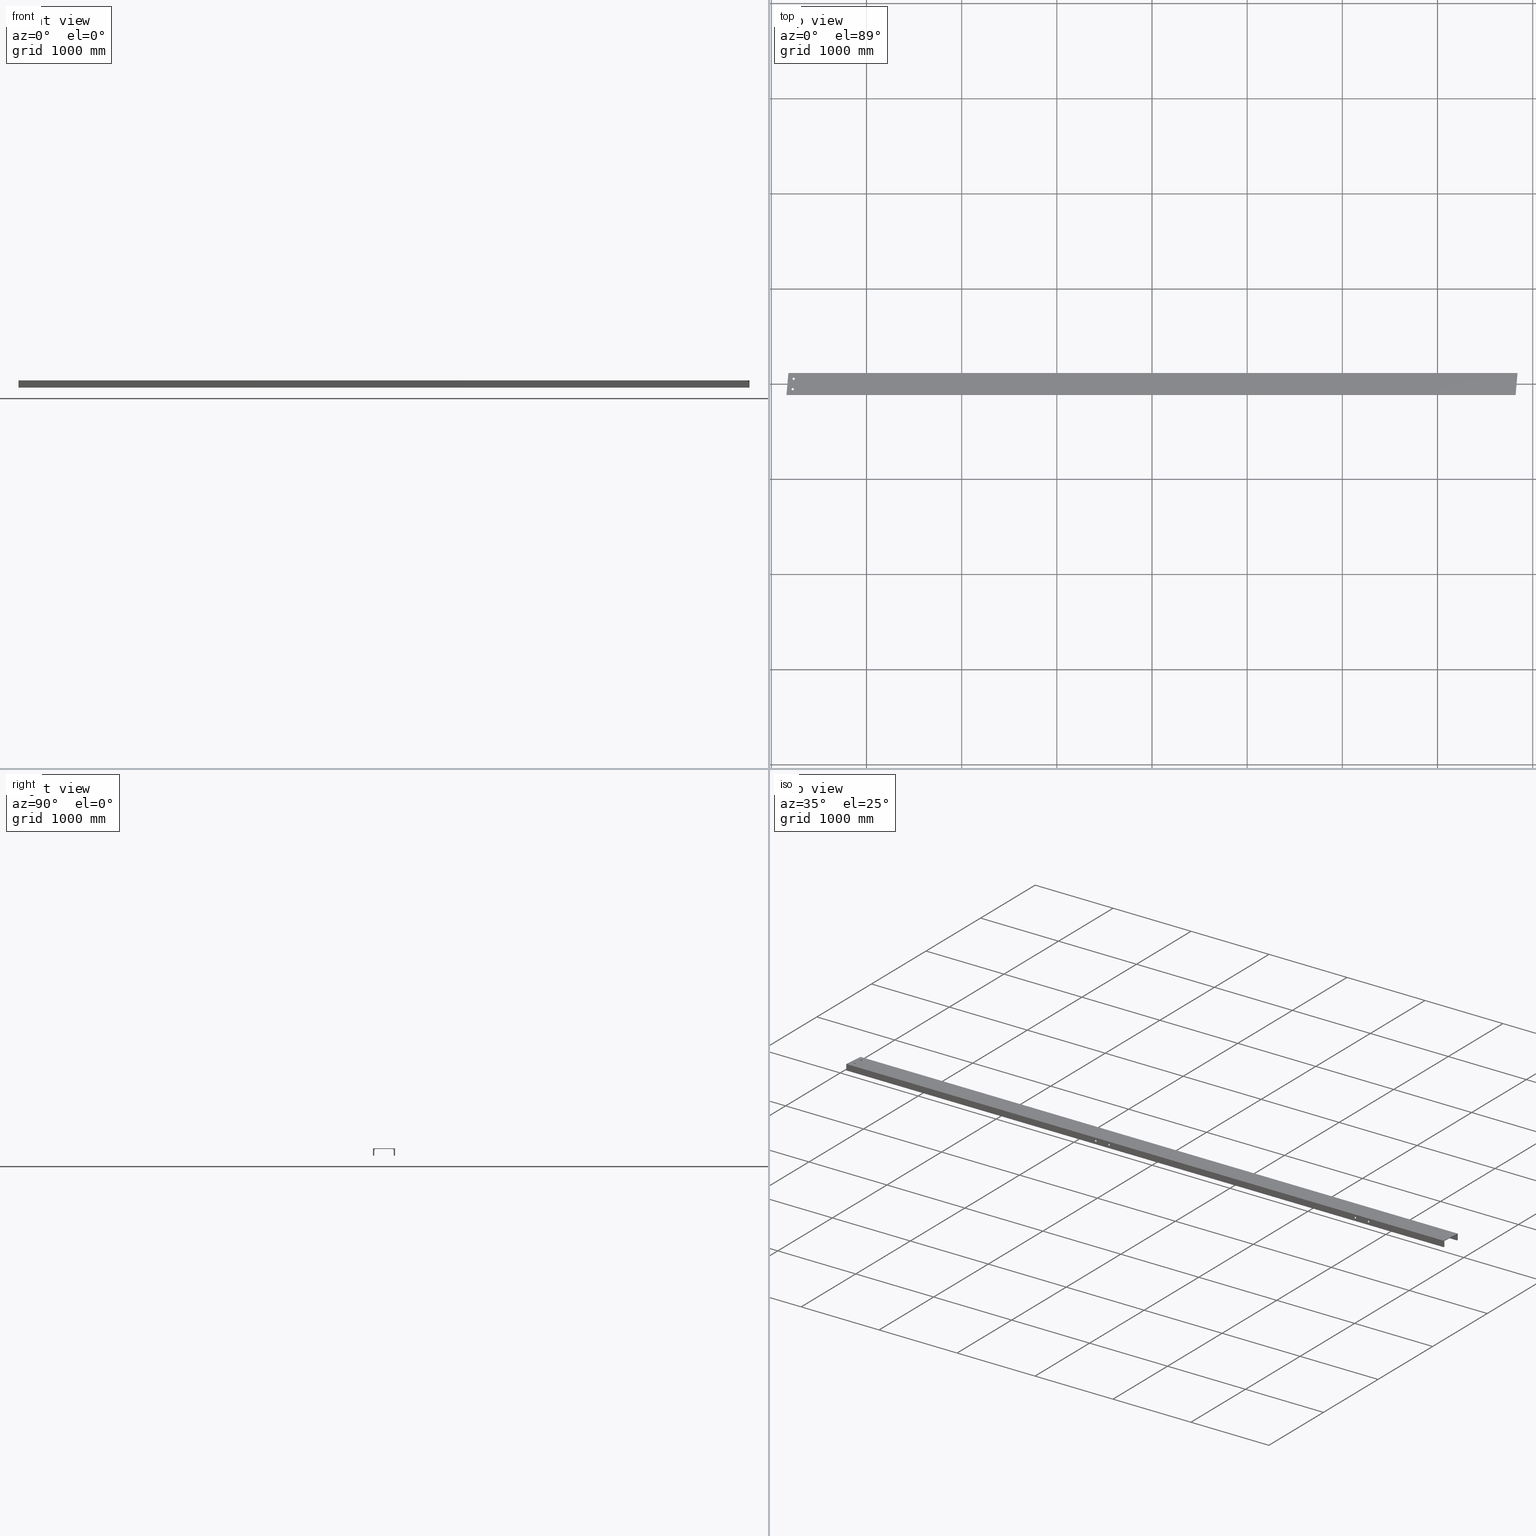
[diagram: canonical four-view strip — front | top / right | iso, engineering-drawing reading convention]
A machine part, canonical four-view strip (front | top / right | iso — engineering-drawing reading convention). The complete STEP part file that produces these views, byte-faithful:
ISO-10303-21;
HEADER;
FILE_DESCRIPTION (( 'STEP AP203' ),
    '1' );
FILE_NAME ('3982-40-10_REV_.step',
    '2026-01-19T05:53:04',
    ( '' ),
    ( '' ),
    'SwSTEP 2.0',
    'SolidWorks 2025',
    '' );
FILE_SCHEMA (( 'CONFIG_CONTROL_DESIGN' ));
ENDSEC;

DATA;
#1 = VECTOR ( 'NONE', #602, 1000.000000000000000 ) ;
#2 = CC_DESIGN_APPROVAL ( #783, ( #697 ) ) ;
#3 = DIRECTION ( 'NONE',  ( 0.000000000000000000, 1.000000000000000000, 0.000000000000000000 ) ) ;
#4 = COORDINATED_UNIVERSAL_TIME_OFFSET ( 10, 0, .AHEAD. ) ;
#5 = CARTESIAN_POINT ( 'NONE',  ( 2686.000000000000000, -114.9999999999991900, -23.79999999999891003 ) ) ;
#6 = ORIENTED_EDGE ( 'NONE', *, *, #145, .T. ) ;
#7 = ORIENTED_EDGE ( 'NONE', *, *, #297, .T. ) ;
#8 = CARTESIAN_POINT ( 'NONE',  ( 3821.927471351350050, -102.9999999999992326, -61.30000000000121219 ) ) ;
#9 = ORIENTED_EDGE ( 'NONE', *, *, #676, .F. ) ;
#10 = DIRECTION ( 'NONE',  ( -0.000000000000000000, -1.000000000000000000, -0.000000000000000000 ) ) ;
#11 = VERTEX_POINT ( 'NONE', #220 ) ;
#12 = VECTOR ( 'NONE', #561, 1000.000000000000000 ) ;
#13 = FACE_BOUND ( 'NONE', #642, .T. ) ;
#14 = VECTOR ( 'NONE', #850, 1000.000000000000114 ) ;
#15 = EDGE_LOOP ( 'NONE', ( #634, #563, #869, #238 ) ) ;
#16 = CYLINDRICAL_SURFACE ( 'NONE', #815, 12.00000000000001066 ) ;
#17 = DIRECTION ( 'NONE',  ( 1.000000000000000000, 3.061616997868382648E-16, -0.000000000000000000 ) ) ;
#18 = PLANE ( 'NONE',  #387 ) ;
#19 = ORIENTED_EDGE ( 'NONE', *, *, #380, .T. ) ;
#20 = EDGE_CURVE ( 'NONE', #148, #186, #645, .T. ) ;
#21 = CARTESIAN_POINT ( 'NONE',  ( -474.0000000000000568, -115.0000000000001563, -23.79999999998324256 ) ) ;
#22 = CARTESIAN_POINT ( 'NONE',  ( -3820.877607389039440, 114.9999999999992326, 13.70000000000000639 ) ) ;
#23 = DIRECTION ( 'NONE',  ( 0.000000000000000000, -1.000000000000000000, 9.251858538543016398E-15 ) ) ;
#24 = ORIENTED_EDGE ( 'NONE', *, *, #653, .F. ) ;
#25 = CARTESIAN_POINT ( 'NONE',  ( 3822.977335313661570, -91.00000000000085265, 7.200000000000907896 ) ) ;
#26 = CARTESIAN_POINT ( 'NONE',  ( -3753.916047590798371, 54.79070839504525026, 7.199999999999372235 ) ) ;
#27 = VECTOR ( 'NONE', #241, 1000.000000000000000 ) ;
#28 = VERTEX_POINT ( 'NONE', #496 ) ;
#29 = VECTOR ( 'NONE', #501, 1000.000000000000000 ) ;
#30 = VECTOR ( 'NONE', #140, 1000.000000000000000 ) ;
#31 = DIRECTION ( 'NONE',  ( -0.000000000000000000, -0.000000000000000000, 1.000000000000000000 ) ) ;
#32 = LINE ( 'NONE', #306, #12 ) ;
#33 = EDGE_CURVE ( 'NONE', #559, #229, #549, .T. ) ;
#34 = DIRECTION ( 'NONE',  ( -0.000000000000000000, -1.000000000000000000, -0.000000000000000000 ) ) ;
#35 = ORIENTED_EDGE ( 'NONE', *, *, #756, .F. ) ;
#36 = CARTESIAN_POINT ( 'NONE',  ( -644.0000000000001137, -103.0000000000002416, -23.80000000001432170 ) ) ;
#37 = ORIENTED_EDGE ( 'NONE', *, *, #848, .T. ) ;
#38 = CARTESIAN_POINT ( 'NONE',  ( -3822.977335313661570, 90.99999999999917577, 7.199999999998990319 ) ) ;
#39 = ADVANCED_FACE ( 'NONE', ( #711 ), #627, .F. ) ;
#40 = DIRECTION ( 'NONE',  ( -3.061616997868382648E-16, 1.000000000000000000, -1.056185620771718791E-14 ) ) ;
#41 = ORIENTED_EDGE ( 'NONE', *, *, #653, .T. ) ;
#42 = PLANE ( 'NONE',  #468 ) ;
#43 = DIRECTION ( 'NONE',  ( 3.226030545363018082E-30, -1.053701539940856832E-14, -1.000000000000000000 ) ) ;
#44 = DIRECTION ( 'NONE',  ( 0.000000000000000000, 0.000000000000000000, -1.000000000000000000 ) ) ;
#45 = ORIENTED_EDGE ( 'NONE', *, *, #676, .T. ) ;
#46 = AXIS2_PLACEMENT_3D ( 'NONE', #132, #410, #683 ) ;
#47 = CIRCLE ( 'NONE', #153, 12.00000000000001421 ) ;
#48 = DIRECTION ( 'NONE',  ( 3.226030545363018082E-30, -1.053701539940856832E-14, -1.000000000000000000 ) ) ;
#49 = ORIENTED_EDGE ( 'NONE', *, *, #288, .T. ) ;
#50 = EDGE_CURVE ( 'NONE', #600, #607, #302, .T. ) ;
#51 = CYLINDRICAL_SURFACE ( 'NONE', #590, 12.00000000000000711 ) ;
#52 = CARTESIAN_POINT ( 'NONE',  ( 2686.000000000000000, -114.9999999999991900, -35.79999999999891713 ) ) ;
#53 = ORIENTED_EDGE ( 'NONE', *, *, #746, .T. ) ;
#54 = DATE_AND_TIME ( #677, #573 ) ;
#55 = LINE ( 'NONE', #730, #208 ) ;
#56 = LINE ( 'NONE', #657, #27 ) ;
#57 = ORIENTED_EDGE ( 'NONE', *, *, #682, .F. ) ;
#58 = VECTOR ( 'NONE', #503, 1000.000000000000000 ) ;
#59 = APPROVAL_ROLE ( '' ) ;
#60 = AXIS2_PLACEMENT_3D ( 'NONE', #142, #480, #221 ) ;
#61 = VECTOR ( 'NONE', #310, 1000.000000000000114 ) ;
#62 = ADVANCED_FACE ( 'NONE', ( #690 ), #81, .T. ) ;
#63 = DIRECTION ( 'NONE',  ( -0.000000000000000000, -0.000000000000000000, 1.000000000000000000 ) ) ;
#64 = ORIENTED_EDGE ( 'NONE', *, *, #733, .F. ) ;
#65 = COORDINATED_UNIVERSAL_TIME_OFFSET ( 10, 0, .AHEAD. ) ;
#66 = DIRECTION ( 'NONE',  ( 0.08715574274765085228, 0.9961946980917461003, 0.000000000000000000 ) ) ;
#67 = EDGE_LOOP ( 'NONE', ( #521, #194, #764, #489 ) ) ;
#68 = CC_DESIGN_DATE_AND_TIME_ASSIGNMENT ( #347, #876, ( #697 ) ) ;
#69 = PLANE ( 'NONE',  #827 ) ;
#70 = AXIS2_PLACEMENT_3D ( 'NONE', #90, #102, #95 ) ;
#71 = VECTOR ( 'NONE', #782, 1000.000000000000227 ) ;
#72 = EDGE_CURVE ( 'NONE', #491, #414, #699, .T. ) ;
#73 = DIRECTION ( 'NONE',  ( 1.000000000000000000, 3.061616997868382648E-16, -0.000000000000000000 ) ) ;
#74 = ORIENTED_EDGE ( 'NONE', *, *, #539, .F. ) ;
#75 = LINE ( 'NONE', #524, #450 ) ;
#76 = EDGE_LOOP ( 'NONE', ( #264, #377 ) ) ;
#77 = VERTEX_POINT ( 'NONE', #22 ) ;
#78 = CARTESIAN_POINT ( 'NONE',  ( -3841.000000000000000, -115.0000000000008100, 13.70000000000121609 ) ) ;
#79 = ORIENTED_EDGE ( 'NONE', *, *, #589, .F. ) ;
#80 = FACE_OUTER_BOUND ( 'NONE', #431, .T. ) ;
#81 = PLANE ( 'NONE',  #588 ) ;
#82 = CARTESIAN_POINT ( 'NONE',  ( -644.0000000000001137, -115.0000000000001990, -11.80000000001430926 ) ) ;
#83 = ADVANCED_FACE ( 'NONE', ( #780 ), #426, .F. ) ;
#84 = CIRCLE ( 'NONE', #226, 12.00000000000001066 ) ;
#85 = ORIENTED_EDGE ( 'NONE', *, *, #452, .F. ) ;
#86 = CARTESIAN_POINT ( 'NONE',  ( -3841.000000000000000, 114.9999999999984226, -61.30000000000120508 ) ) ;
#87 = DIRECTION ( 'NONE',  ( -2.832564736347702873E-30, 9.251858538543016398E-15, 1.000000000000000000 ) ) ;
#88 = ORIENTED_EDGE ( 'NONE', *, *, #509, .F. ) ;
#89 = CARTESIAN_POINT ( 'NONE',  ( 2856.000000000000000, -114.9999999999991331, -35.79999999999894555 ) ) ;
#90 = CARTESIAN_POINT ( 'NONE',  ( 2856.000000000000000, -114.9999999999991331, -23.79999999999893134 ) ) ;
#91 = DIRECTION ( 'NONE',  ( 1.000000000000000000, 0.000000000000000000, 0.000000000000000000 ) ) ;
#92 = ORIENTED_EDGE ( 'NONE', *, *, #268, .F. ) ;
#93 = EDGE_CURVE ( 'NONE', #156, #414, #291, .T. ) ;
#94 = CARTESIAN_POINT ( 'NONE',  ( -3820.877607389039440, 114.9999999999992326, 13.70000000000000639 ) ) ;
#95 = DIRECTION ( 'NONE',  ( 0.000000000000000000, 0.000000000000000000, -1.000000000000000000 ) ) ;
#96 = FACE_BOUND ( 'NONE', #370, .T. ) ;
#97 = VERTEX_POINT ( 'NONE', #487 ) ;
#98 = CIRCLE ( 'NONE', #571, 12.00000000000001066 ) ;
#99 = APPROVAL_PERSON_ORGANIZATION ( #122, #629, #883 ) ;
#100 = CARTESIAN_POINT ( 'NONE',  ( -3820.877607389039440, 114.9999999999992326, -61.30000000000121219 ) ) ;
#101 = EDGE_CURVE ( 'NONE', #343, #837, #235, .T. ) ;
#102 = DIRECTION ( 'NONE',  ( -0.000000000000000000, -1.000000000000000000, -0.000000000000000000 ) ) ;
#103 = DIRECTION ( 'NONE',  ( -0.000000000000000000, -1.000000000000000000, -0.000000000000000000 ) ) ;
#104 = ORIENTED_EDGE ( 'NONE', *, *, #72, .F. ) ;
#105 = CARTESIAN_POINT ( 'NONE',  ( -3765.916047590798371, 54.79070839504525026, 13.70000000000000639 ) ) ;
#106 = LINE ( 'NONE', #383, #500 ) ;
#107 = CARTESIAN_POINT ( 'NONE',  ( 2856.000000000000000, -102.9999999999993037, -35.79999999999894555 ) ) ;
#108 = VERTEX_POINT ( 'NONE', #843 ) ;
#109 =( LENGTH_UNIT ( ) NAMED_UNIT ( * ) SI_UNIT ( .MILLI., .METRE. ) );
#110 = LINE ( 'NONE', #168, #725 ) ;
#111 = CARTESIAN_POINT ( 'NONE',  ( -3838.916221867997137, -91.18230696385437284, 7.200000000000909672 ) ) ;
#112 = ORIENTED_EDGE ( 'NONE', *, *, #437, .F. ) ;
#113 = CIRCLE ( 'NONE', #319, 12.00000000000001066 ) ;
#114 = CC_DESIGN_APPROVAL ( #519, ( #620 ) ) ;
#115 = CARTESIAN_POINT ( 'NONE',  ( -474.0000000000000568, -115.0000000000001563, -23.79999999998324256 ) ) ;
#116 = DIRECTION ( 'NONE',  ( 0.000000000000000000, 1.040834085586083310E-14, 1.000000000000000000 ) ) ;
#117 = VERTEX_POINT ( 'NONE', #231 ) ;
#118 = LINE ( 'NONE', #439, #486 ) ;
#119 = DIRECTION ( 'NONE',  ( 0.000000000000000000, 0.000000000000000000, -1.000000000000000000 ) ) ;
#120 = CARTESIAN_POINT ( 'NONE',  ( -3841.000000000000000, 114.9999999999992326, 13.69999999999879492 ) ) ;
#121 = ORIENTED_EDGE ( 'NONE', *, *, #539, .T. ) ;
#122 = PERSON_AND_ORGANIZATION ( #304, #671 ) ;
#123 = ADVANCED_FACE ( 'NONE', ( #776 ), #160, .F. ) ;
#124 = LINE ( 'NONE', #511, #195 ) ;
#125 = EDGE_LOOP ( 'NONE', ( #121, #475, #477, #92 ) ) ;
#126 = VECTOR ( 'NONE', #846, 1000.000000000000000 ) ;
#127 = DIRECTION ( 'NONE',  ( 0.000000000000000000, 1.007060708177685505E-14, 1.000000000000000000 ) ) ;
#128 = ORIENTED_EDGE ( 'NONE', *, *, #371, .T. ) ;
#129 = DIRECTION ( 'NONE',  ( 0.000000000000000000, 0.000000000000000000, 1.000000000000000000 ) ) ;
#130 = CARTESIAN_POINT ( 'NONE',  ( -3839.950136037689390, -103.0000000000009805, -4.799999999998885158 ) ) ;
#131 = ORIENTED_EDGE ( 'NONE', *, *, #879, .T. ) ;
#132 = CARTESIAN_POINT ( 'NONE',  ( -3775.503179293039466, -54.79070839504681345, 7.200000000000525979 ) ) ;
#133 = EDGE_CURVE ( 'NONE', #491, #77, #32, .T. ) ;
#134 = APPROVAL_STATUS ( 'not_yet_approved' ) ;
#135 = AXIS2_PLACEMENT_3D ( 'NONE', #651, #874, #665 ) ;
#136 = CIRCLE ( 'NONE', #855, 12.00000000000000711 ) ;
#137 = AXIS2_PLACEMENT_3D ( 'NONE', #144, #214, #761 ) ;
#138 = CARTESIAN_POINT ( 'NONE',  ( 2856.000000000000000, -102.9999999999991758, -23.79999999999893134 ) ) ;
#139 = VERTEX_POINT ( 'NONE', #863 ) ;
#140 = DIRECTION ( 'NONE',  ( 1.000000000000000000, 3.061616997868382648E-16, -0.000000000000000000 ) ) ;
#141 = VERTEX_POINT ( 'NONE', #52 ) ;
#142 = CARTESIAN_POINT ( 'NONE',  ( 2686.000000000000000, -102.9999999999992326, -23.79999999999891003 ) ) ;
#143 = ORIENTED_EDGE ( 'NONE', *, *, #170, .F. ) ;
#144 = CARTESIAN_POINT ( 'NONE',  ( 2856.000000000000000, -114.9999999999991331, -23.79999999999893134 ) ) ;
#145 = EDGE_CURVE ( 'NONE', #166, #248, #124, .T. ) ;
#146 = ORIENTED_EDGE ( 'NONE', *, *, #345, .F. ) ;
#147 = CARTESIAN_POINT ( 'NONE',  ( -3775.503179293039466, -54.79070839504681345, 13.70000000000000639 ) ) ;
#148 = VERTEX_POINT ( 'NONE', #591 ) ;
#149 = CYLINDRICAL_SURFACE ( 'NONE', #695, 12.00000000000001066 ) ;
#150 = CARTESIAN_POINT ( 'NONE',  ( -3839.950136037688935, -103.0000000000016200, -61.29999999999893134 ) ) ;
#151 = AXIS2_PLACEMENT_3D ( 'NONE', #78, #356, #492 ) ;
#152 = DIRECTION ( 'NONE',  ( -0.000000000000000000, -0.000000000000000000, 1.000000000000000000 ) ) ;
#153 = AXIS2_PLACEMENT_3D ( 'NONE', #719, #729, #378 ) ;
#154 = EDGE_LOOP ( 'NONE', ( #379, #732, #143, #473 ) ) ;
#155 = DIRECTION ( 'NONE',  ( 1.000000000000000000, 0.000000000000000000, 0.000000000000000000 ) ) ;
#156 = VERTEX_POINT ( 'NONE', #722 ) ;
#157 = DIRECTION ( 'NONE',  ( 0.000000000000000000, 1.056185620771718791E-14, 1.000000000000000000 ) ) ;
#158 = ORIENTED_EDGE ( 'NONE', *, *, #33, .F. ) ;
#159 = LINE ( 'NONE', #372, #517 ) ;
#160 = PLANE ( 'NONE',  #449 ) ;
#161 = PLANE ( 'NONE',  #300 ) ;
#162 = ORIENTED_EDGE ( 'NONE', *, *, #317, .T. ) ;
#163 = DIRECTION ( 'NONE',  ( 9.240426839660936864E-16, 1.056185620771718791E-14, 1.000000000000000000 ) ) ;
#164 = DIRECTION ( 'NONE',  ( 0.000000000000000000, 1.000000000000000000, -1.272130549049665110E-14 ) ) ;
#165 = DIRECTION ( 'NONE',  ( -0.000000000000000000, -1.000000000000000000, -0.000000000000000000 ) ) ;
#166 = VERTEX_POINT ( 'NONE', #328 ) ;
#167 = AXIS2_PLACEMENT_3D ( 'NONE', #715, #253, #250 ) ;
#168 = CARTESIAN_POINT ( 'NONE',  ( 2686.000000000000000, -114.9999999999991900, -35.79999999999891713 ) ) ;
#169 = EDGE_LOOP ( 'NONE', ( #24, #393, #178, #831 ) ) ;
#170 = EDGE_CURVE ( 'NONE', #77, #156, #441, .T. ) ;
#171 = LINE ( 'NONE', #259, #71 ) ;
#172 = DIRECTION ( 'NONE',  ( 0.000000000000000000, 1.000000000000000000, 0.000000000000000000 ) ) ;
#173 = ORIENTED_EDGE ( 'NONE', *, *, #714, .T. ) ;
#174 = DIRECTION ( 'NONE',  ( -0.000000000000000000, -1.000000000000000000, -0.000000000000000000 ) ) ;
#175 = CYLINDRICAL_SURFACE ( 'NONE', #167, 12.00000000000001066 ) ;
#176 = EDGE_CURVE ( 'NONE', #251, #581, #463, .T. ) ;
#177 = CARTESIAN_POINT ( 'NONE',  ( -3841.000000000000000, -115.0000000000015632, -61.29999999999878213 ) ) ;
#178 = ORIENTED_EDGE ( 'NONE', *, *, #576, .T. ) ;
#179 = VECTOR ( 'NONE', #17, 1000.000000000000000 ) ;
#180 = VECTOR ( 'NONE', #680, 1000.000000000000000 ) ;
#181 = LOCAL_TIME ( 16, 53, 4.000000000000000000, #65 ) ;
#182 = DIRECTION ( 'NONE',  ( -0.000000000000000000, -0.000000000000000000, 1.000000000000000000 ) ) ;
#183 = CC_DESIGN_PERSON_AND_ORGANIZATION_ASSIGNMENT ( #341, #818, ( #788 ) ) ;
#184 = DIRECTION ( 'NONE',  ( 8.810639544792988904E-16, 1.007060708177685663E-14, 1.000000000000000000 ) ) ;
#185 = CARTESIAN_POINT ( 'NONE',  ( -644.0000000000001137, -115.0000000000001990, -23.80000000001432170 ) ) ;
#186 = VERTEX_POINT ( 'NONE', #445 ) ;
#187 = ADVANCED_FACE ( 'NONE', ( #254 ), #808, .F. ) ;
#188 = APPROVAL_DATE_TIME ( #267, #629 ) ;
#189 = EDGE_CURVE ( 'NONE', #559, #366, #260, .T. ) ;
#190 = CARTESIAN_POINT ( 'NONE',  ( -644.0000000000001137, -103.0000000000002416, -23.80000000001432170 ) ) ;
#191 = EDGE_LOOP ( 'NONE', ( #687, #841 ) ) ;
#192 = EDGE_CURVE ( 'NONE', #117, #343, #299, .T. ) ;
#193 = CARTESIAN_POINT ( 'NONE',  ( -3839.515268145853497, -98.02943725152374554, 7.200000000001046452 ) ) ;
#194 = ORIENTED_EDGE ( 'NONE', *, *, #522, .F. ) ;
#195 = VECTOR ( 'NONE', #852, 1000.000000000000000 ) ;
#196 = VECTOR ( 'NONE', #720, 1000.000000000000000 ) ;
#197 = DATE_TIME_ROLE ( 'classification_date' ) ;
#198 = VECTOR ( 'NONE', #165, 1000.000000000000000 ) ;
#199 = AXIS2_PLACEMENT_3D ( 'NONE', #787, #395, #861 ) ;
#200 = FACE_OUTER_BOUND ( 'NONE', #630, .T. ) ;
#201 = DATE_AND_TIME ( #470, #376 ) ;
#202 = EDGE_CURVE ( 'NONE', #465, #837, #282, .T. ) ;
#203 = FACE_OUTER_BOUND ( 'NONE', #169, .T. ) ;
#204 = CALENDAR_DATE ( 2026, 19, 1 ) ;
#205 = DIRECTION ( 'NONE',  ( 0.000000000000000000, 1.040834085586083310E-14, 1.000000000000000000 ) ) ;
#206 = ORIENTED_EDGE ( 'NONE', *, *, #547, .T. ) ;
#207 = VECTOR ( 'NONE', #298, 1000.000000000000000 ) ;
#208 = VECTOR ( 'NONE', #184, 1000.000000000000000 ) ;
#209 = ORIENTED_EDGE ( 'NONE', *, *, #458, .F. ) ;
#210 = CC_DESIGN_APPROVAL ( #629, ( #788 ) ) ;
#211 = DIRECTION ( 'NONE',  ( -3.061616997868382648E-16, 1.000000000000000000, -1.056185620771718791E-14 ) ) ;
#212 = ORIENTED_EDGE ( 'NONE', *, *, #93, .T. ) ;
#213 = EDGE_CURVE ( 'NONE', #366, #600, #56, .T. ) ;
#214 = DIRECTION ( 'NONE',  ( -0.000000000000000000, -1.000000000000000000, -0.000000000000000000 ) ) ;
#215 = DIRECTION ( 'NONE',  ( -0.000000000000000000, -1.000000000000000000, -0.000000000000000000 ) ) ;
#216 = EDGE_CURVE ( 'NONE', #139, #597, #635, .T. ) ;
#217 = CARTESIAN_POINT ( 'NONE',  ( -3763.503179293039466, -54.79070839504681345, 13.70000000000000639 ) ) ;
#218 = EDGE_LOOP ( 'NONE', ( #296, #759, #798, #45, #79, #418, #812, #766, #823, #717 ) ) ;
#219 = DIRECTION ( 'NONE',  ( 0.000000000000000000, 1.000000000000000000, -1.055290114552557281E-14 ) ) ;
#220 = CARTESIAN_POINT ( 'NONE',  ( 2856.000000000000000, -114.9999999999991331, -35.79999999999894555 ) ) ;
#221 = DIRECTION ( 'NONE',  ( 0.000000000000000000, 1.040834085586083310E-14, 1.000000000000000000 ) ) ;
#222 = VERTEX_POINT ( 'NONE', #107 ) ;
#223 = DIRECTION ( 'NONE',  ( -0.000000000000000000, -0.000000000000000000, 1.000000000000000000 ) ) ;
#224 = UNCERTAINTY_MEASURE_WITH_UNIT (LENGTH_MEASURE( 1.000000000000000082E-05 ), #109, 'distance_accuracy_value', 'NONE');
#225 = DIRECTION ( 'NONE',  ( -9.240426839660826424E-16, -1.056185620771718791E-14, -1.000000000000000000 ) ) ;
#226 = AXIS2_PLACEMENT_3D ( 'NONE', #147, #152, #91 ) ;
#227 = DIRECTION ( 'NONE',  ( 1.000000000000000000, 3.061616997868382648E-16, -0.000000000000000000 ) ) ;
#228 = AXIS2_PLACEMENT_3D ( 'NONE', #283, #354, #219 ) ;
#229 = VERTEX_POINT ( 'NONE', #456 ) ;
#230 = EDGE_CURVE ( 'NONE', #166, #321, #320, .T. ) ;
#231 = CARTESIAN_POINT ( 'NONE',  ( -644.0000000000001137, -103.0000000000001137, -11.80000000001430926 ) ) ;
#232 = DIRECTION ( 'NONE',  ( 3.223581824952207075E-30, -1.052901727158096773E-14, -1.000000000000000000 ) ) ;
#233 = ORIENTED_EDGE ( 'NONE', *, *, #678, .F. ) ;
#234 = CARTESIAN_POINT ( 'NONE',  ( 2686.000000000000000, -114.9999999999991900, -23.79999999999891003 ) ) ;
#235 = LINE ( 'NONE', #368, #207 ) ;
#236 = FACE_BOUND ( 'NONE', #784, .T. ) ;
#237 = ADVANCED_FACE ( 'NONE', ( #515 ), #804, .F. ) ;
#238 = ORIENTED_EDGE ( 'NONE', *, *, #33, .T. ) ;
#239 = CARTESIAN_POINT ( 'NONE',  ( 3821.927471351350505, -102.9999999999992752, -61.30000000000600835 ) ) ;
#240 = DIRECTION ( 'NONE',  ( 0.000000000000000000, 1.040834085586083310E-14, 1.000000000000000000 ) ) ;
#241 = DIRECTION ( 'NONE',  ( 1.000000000000000000, 3.061616997868382648E-16, -0.000000000000000000 ) ) ;
#242 = ORIENTED_EDGE ( 'NONE', *, *, #522, .T. ) ;
#243 = VECTOR ( 'NONE', #514, 1000.000000000000000 ) ;
#244 = ADVANCED_FACE ( 'NONE', ( #520 ), #507, .F. ) ;
#245 = DIRECTION ( 'NONE',  ( -3.061616997868382648E-16, 1.000000000000000000, -1.056185620771718791E-14 ) ) ;
#246 = CARTESIAN_POINT ( 'NONE',  ( -474.0000000000000568, -103.0000000000001847, -23.79999999998324256 ) ) ;
#247 = DIRECTION ( 'NONE',  ( 0.000000000000000000, 0.000000000000000000, -1.000000000000000000 ) ) ;
#248 = VERTEX_POINT ( 'NONE', #177 ) ;
#249 =( NAMED_UNIT ( * ) SI_UNIT ( $, .STERADIAN. ) SOLID_ANGLE_UNIT ( ) );
#250 = DIRECTION ( 'NONE',  ( 1.000000000000000000, 0.000000000000000000, 0.000000000000000000 ) ) ;
#251 = VERTEX_POINT ( 'NONE', #451 ) ;
#252 = FACE_OUTER_BOUND ( 'NONE', #685, .T. ) ;
#253 = DIRECTION ( 'NONE',  ( -0.000000000000000000, -0.000000000000000000, 1.000000000000000000 ) ) ;
#254 = FACE_OUTER_BOUND ( 'NONE', #125, .T. ) ;
#255 = EDGE_LOOP ( 'NONE', ( #508, #309, #768, #382 ) ) ;
#256 = AXIS2_PLACEMENT_3D ( 'NONE', #185, #859, #247 ) ;
#257 = AXIS2_PLACEMENT_3D ( 'NONE', #662, #129, #526 ) ;
#258 = PERSON_AND_ORGANIZATION ( #304, #671 ) ;
#259 = CARTESIAN_POINT ( 'NONE',  ( 3764.760817020207924, -756.4178489788904471, 7.200000000007920065 ) ) ;
#260 = LINE ( 'NONE', #111, #679 ) ;
#261 = VERTEX_POINT ( 'NONE', #334 ) ;
#262 = SECURITY_CLASSIFICATION_LEVEL ( 'unclassified' ) ;
#263 = CARTESIAN_POINT ( 'NONE',  ( -3839.950136037689390, -103.0000000000009095, 2.229437251523970431 ) ) ;
#264 = ORIENTED_EDGE ( 'NONE', *, *, #663, .F. ) ;
#265 = CARTESIAN_POINT ( 'NONE',  ( -3820.877607389039440, 114.9999999999992326, -61.30000000000121219 ) ) ;
#266 = VECTOR ( 'NONE', #497, 1000.000000000000000 ) ;
#267 = DATE_AND_TIME ( #204, #181 ) ;
#268 = EDGE_CURVE ( 'NONE', #597, #97, #727, .T. ) ;
#269 = DIRECTION ( 'NONE',  ( -0.000000000000000000, -1.000000000000000000, -0.000000000000000000 ) ) ;
#270 = ADVANCED_FACE ( 'NONE', ( #606 ), #348, .F. ) ;
#271 = APPROVAL_STATUS ( 'not_yet_approved' ) ;
#272 = ADVANCED_FACE ( 'NONE', ( #278 ), #69, .F. ) ;
#273 = CARTESIAN_POINT ( 'NONE',  ( -3763.503179293039466, -54.79070839504681345, 7.200000000000525979 ) ) ;
#274 = ORIENTED_EDGE ( 'NONE', *, *, #20, .T. ) ;
#275 = CC_DESIGN_PERSON_AND_ORGANIZATION_ASSIGNMENT ( #672, #531, ( #620 ) ) ;
#276 = CARTESIAN_POINT ( 'NONE',  ( 3839.950136037689390, 103.0000000000013927, -4.800000000001060307 ) ) ;
#277 = ORIENTED_EDGE ( 'NONE', *, *, #332, .F. ) ;
#278 = FACE_OUTER_BOUND ( 'NONE', #453, .T. ) ;
#279 = ADVANCED_FACE ( 'NONE', ( #203 ), #534, .F. ) ;
#280 = VERTEX_POINT ( 'NONE', #273 ) ;
#281 = ADVANCED_FACE ( 'NONE', ( #538 ), #826, .F. ) ;
#282 = CIRCLE ( 'NONE', #800, 12.00000000000001421 ) ;
#283 = CARTESIAN_POINT ( 'NONE',  ( -3765.916047590798371, 54.79070839504525026, 7.199999999999372235 ) ) ;
#284 = CIRCLE ( 'NONE', #786, 12.00000000000001066 ) ;
#285 = ORIENTED_EDGE ( 'NONE', *, *, #176, .F. ) ;
#286 = LOCAL_TIME ( 16, 53, 4.000000000000000000, #601 ) ;
#287 = DIRECTION ( 'NONE',  ( 3.226030545363018082E-30, -1.053701539940856832E-14, -1.000000000000000000 ) ) ;
#288 = EDGE_CURVE ( 'NONE', #670, #321, #75, .T. ) ;
#289 = ORIENTED_EDGE ( 'NONE', *, *, #718, .F. ) ;
#290 = CARTESIAN_POINT ( 'NONE',  ( -3841.000000000000000, -103.0000000000009805, -4.799999999998885158 ) ) ;
#291 = LINE ( 'NONE', #553, #126 ) ;
#292 = CARTESIAN_POINT ( 'NONE',  ( -3841.000000000000000, -115.0000000000008100, 13.70000000000121609 ) ) ;
#293 = VERTEX_POINT ( 'NONE', #8 ) ;
#294 = ORIENTED_EDGE ( 'NONE', *, *, #133, .F. ) ;
#295 = FACE_BOUND ( 'NONE', #364, .T. ) ;
#296 = ORIENTED_EDGE ( 'NONE', *, *, #813, .T. ) ;
#297 = EDGE_CURVE ( 'NONE', #222, #261, #802, .T. ) ;
#298 = DIRECTION ( 'NONE',  ( -0.000000000000000000, -1.000000000000000000, -0.000000000000000000 ) ) ;
#299 = CIRCLE ( 'NONE', #692, 12.00000000000001066 ) ;
#300 = AXIS2_PLACEMENT_3D ( 'NONE', #836, #87, #23 ) ;
#301 = FACE_BOUND ( 'NONE', #817, .T. ) ;
#302 =( BOUNDED_CURVE ( )  B_SPLINE_CURVE ( 3, ( #25, #565, #482, #419 ),
 .UNSPECIFIED., .F., .T. ) 
 B_SPLINE_CURVE_WITH_KNOTS ( ( 4, 4 ),
 ( 1.570796326795072195, 3.141592653589782902 ),
 .UNSPECIFIED. ) 
 CURVE ( )  GEOMETRIC_REPRESENTATION_ITEM ( )  RATIONAL_B_SPLINE_CURVE ( ( 1.000000000000000000, 0.8047378541244087913, 0.8047378541244087913, 1.000000000000000000 ) ) 
 REPRESENTATION_ITEM ( '' )  );
#303 = ORIENTED_EDGE ( 'NONE', *, *, #533, .F. ) ;
#304 = PERSON ( 'UNSPECIFIED', 'UNSPECIFIED', 'UNSPECIFIED', ('UNSPECIFIED'), ('UNSPECIFIED'), ('UNSPECIFIED') ) ;
#305 = DIRECTION ( 'NONE',  ( 0.000000000000000000, 1.040834085586083310E-14, 1.000000000000000000 ) ) ;
#306 = CARTESIAN_POINT ( 'NONE',  ( -3820.877607389039440, 114.9999999999992326, -61.30000000000121219 ) ) ;
#307 = EDGE_CURVE ( 'NONE', #613, #771, #113, .T. ) ;
#308 = FACE_BOUND ( 'NONE', #585, .T. ) ;
#309 = ORIENTED_EDGE ( 'NONE', *, *, #533, .T. ) ;
#310 = DIRECTION ( 'NONE',  ( -0.08715574274765190699, -0.9961946980917459893, 0.000000000000000000 ) ) ;
#311 = ORIENTED_EDGE ( 'NONE', *, *, #682, .T. ) ;
#312 = CARTESIAN_POINT ( 'NONE',  ( -474.0000000000000568, -115.0000000000001563, -11.79999999998323013 ) ) ;
#313 = DIRECTION ( 'NONE',  ( -0.08715574274765085228, -0.9961946980917461003, 1.049691887460189778E-14 ) ) ;
#314 = EDGE_CURVE ( 'NONE', #28, #141, #814, .T. ) ;
#315 = ORIENTED_EDGE ( 'NONE', *, *, #133, .T. ) ;
#316 = CARTESIAN_POINT ( 'NONE',  ( -3763.503179293039466, -54.79070839504681345, 13.70000000000000639 ) ) ;
#317 = EDGE_CURVE ( 'NONE', #148, #366, #731, .T. ) ;
#318 = CARTESIAN_POINT ( 'NONE',  ( -3821.927471351350505, 102.9999999999984794, -61.30000000000111271 ) ) ;
#319 = AXIS2_PLACEMENT_3D ( 'NONE', #352, #211, #339 ) ;
#320 = LINE ( 'NONE', #574, #751 ) ;
#321 = VERTEX_POINT ( 'NONE', #737 ) ;
#322 = EDGE_CURVE ( 'NONE', #504, #97, #136, .T. ) ;
#323 = LOCAL_TIME ( 16, 53, 4.000000000000000000, #523 ) ;
#324 = FACE_BOUND ( 'NONE', #76, .T. ) ;
#325 = LINE ( 'NONE', #290, #30 ) ;
#326 = ORIENTED_EDGE ( 'NONE', *, *, #170, .T. ) ;
#327 = DIRECTION ( 'NONE',  ( -8.810639544792883394E-16, -1.007060708177685505E-14, -1.000000000000000000 ) ) ;
#328 = CARTESIAN_POINT ( 'NONE',  ( -3841.000000000000000, -115.0000000000008100, 13.70000000000000639 ) ) ;
#329 = ORIENTED_EDGE ( 'NONE', *, *, #230, .F. ) ;
#330 = APPLICATION_CONTEXT ( 'configuration controlled 3d designs of mechanical parts and assemblies' ) ;
#331 = APPROVAL_DATE_TIME ( #54, #783 ) ;
#332 = EDGE_CURVE ( 'NONE', #248, #670, #405, .T. ) ;
#333 = LINE ( 'NONE', #318, #346 ) ;
#334 = CARTESIAN_POINT ( 'NONE',  ( 2856.000000000000000, -102.9999999999990479, -11.79999999999891891 ) ) ;
#335 = ORIENTED_EDGE ( 'NONE', *, *, #317, .F. ) ;
#336 = AXIS2_PLACEMENT_3D ( 'NONE', #821, #758, #127 ) ;
#337 = VECTOR ( 'NONE', #622, 1000.000000000000000 ) ;
#338 = COORDINATED_UNIVERSAL_TIME_OFFSET ( 10, 0, .AHEAD. ) ;
#339 = DIRECTION ( 'NONE',  ( 0.000000000000000000, 1.040834085586083310E-14, 1.000000000000000000 ) ) ;
#340 = ORIENTED_EDGE ( 'NONE', *, *, #307, .F. ) ;
#341 = PERSON_AND_ORGANIZATION ( #304, #671 ) ;
#342 = CARTESIAN_POINT ( 'NONE',  ( -3841.000000000000000, -115.0000000000015632, -61.29999999999878213 ) ) ;
#343 = VERTEX_POINT ( 'NONE', #881 ) ;
#344 = DIRECTION ( 'NONE',  ( 0.000000000000000000, 1.040834085586083310E-14, 1.000000000000000000 ) ) ;
#345 = EDGE_CURVE ( 'NONE', #261, #222, #485, .T. ) ;
#346 = VECTOR ( 'NONE', #327, 1000.000000000000000 ) ;
#347 = DATE_AND_TIME ( #586, #286 ) ;
#348 = PLANE ( 'NONE',  #753 ) ;
#349 = CC_DESIGN_PERSON_AND_ORGANIZATION_ASSIGNMENT ( #749, #747, ( #579 ) ) ;
#350 = ORIENTED_EDGE ( 'NONE', *, *, #314, .T. ) ;
#351 = EDGE_CURVE ( 'NONE', #248, #186, #413, .T. ) ;
#352 = CARTESIAN_POINT ( 'NONE',  ( 2686.000000000000000, -102.9999999999992326, -23.79999999999891003 ) ) ;
#353 = ORIENTED_EDGE ( 'NONE', *, *, #576, .F. ) ;
#354 = DIRECTION ( 'NONE',  ( 3.226030545363018082E-30, -1.053701539940856832E-14, -1.000000000000000000 ) ) ;
#355 = ORIENTED_EDGE ( 'NONE', *, *, #621, .F. ) ;
#356 = DIRECTION ( 'NONE',  ( 3.061616997868382648E-16, -1.000000000000000000, 9.992007221626408864E-15 ) ) ;
#357 = ORIENTED_EDGE ( 'NONE', *, *, #380, .F. ) ;
#358 = LINE ( 'NONE', #89, #337 ) ;
#359 = VECTOR ( 'NONE', #578, 1000.000000000000000 ) ;
#360 = DIRECTION ( 'NONE',  ( 3.894776512478092020E-30, -1.272130549049665110E-14, -1.000000000000000000 ) ) ;
#361 = CIRCLE ( 'NONE', #137, 12.00000000000001421 ) ;
#362 = CARTESIAN_POINT ( 'NONE',  ( 2686.000000000000000, -114.9999999999991900, -23.79999999999891003 ) ) ;
#363 = ORIENTED_EDGE ( 'NONE', *, *, #432, .F. ) ;
#364 = EDGE_LOOP ( 'NONE', ( #289, #112 ) ) ;
#365 = CARTESIAN_POINT ( 'NONE',  ( 2856.000000000000000, -114.9999999999991331, -23.79999999999893134 ) ) ;
#366 = VERTEX_POINT ( 'NONE', #816 ) ;
#367 = ADVANCED_FACE ( 'NONE', ( #200 ), #408, .F. ) ;
#368 = CARTESIAN_POINT ( 'NONE',  ( -644.0000000000001137, -115.0000000000001990, -35.80000000001433591 ) ) ;
#369 = FACE_BOUND ( 'NONE', #191, .T. ) ;
#370 = EDGE_LOOP ( 'NONE', ( #494, #340 ) ) ;
#371 = EDGE_CURVE ( 'NONE', #806, #280, #422, .T. ) ;
#372 = CARTESIAN_POINT ( 'NONE',  ( 3841.000000000000000, 115.0000000000015774, -61.30000000000121219 ) ) ;
#373 = DIRECTION ( 'NONE',  ( -0.9961946980917461003, 0.08715574274765192087, 0.000000000000000000 ) ) ;
#374 = AXIS2_PLACEMENT_3D ( 'NONE', #138, #748, #344 ) ;
#375 = CARTESIAN_POINT ( 'NONE',  ( -3841.000000000000000, 102.9999999999984794, -61.30000000000109850 ) ) ;
#376 = LOCAL_TIME ( 16, 53, 4.000000000000000000, #338 ) ;
#377 = ORIENTED_EDGE ( 'NONE', *, *, #371, .F. ) ;
#378 = DIRECTION ( 'NONE',  ( 0.000000000000000000, 0.000000000000000000, -1.000000000000000000 ) ) ;
#379 = ORIENTED_EDGE ( 'NONE', *, *, #230, .T. ) ;
#380 = EDGE_CURVE ( 'NONE', #467, #581, #483, .T. ) ;
#381 = DIRECTION ( 'NONE',  ( 0.000000000000000000, 0.000000000000000000, -1.000000000000000000 ) ) ;
#382 = ORIENTED_EDGE ( 'NONE', *, *, #805, .F. ) ;
#383 = CARTESIAN_POINT ( 'NONE',  ( 2686.000000000000000, -114.9999999999991900, -11.79999999999889759 ) ) ;
#384 = ORIENTED_EDGE ( 'NONE', *, *, #547, .F. ) ;
#385 =( NAMED_UNIT ( * ) PLANE_ANGLE_UNIT ( ) SI_UNIT ( $, .RADIAN. ) );
#386 = DIRECTION ( 'NONE',  ( -0.000000000000000000, -1.000000000000000000, -0.000000000000000000 ) ) ;
#387 = AXIS2_PLACEMENT_3D ( 'NONE', #292, #232, #632 ) ;
#388 = DIRECTION ( 'NONE',  ( -3.061616997868382648E-16, 1.000000000000000000, -1.056185620771718791E-14 ) ) ;
#389 = EDGE_LOOP ( 'NONE', ( #355, #406, #535, #833 ) ) ;
#390 = LINE ( 'NONE', #791, #61 ) ;
#391 = LINE ( 'NONE', #312, #542 ) ;
#392 = CARTESIAN_POINT ( 'NONE',  ( -644.0000000000001137, -115.0000000000001990, -23.80000000001432170 ) ) ;
#393 = ORIENTED_EDGE ( 'NONE', *, *, #307, .T. ) ;
#394 = ADVANCED_FACE ( 'NONE', ( #703, #301, #13, #236, #308 ), #417, .T. ) ;
#395 = DIRECTION ( 'NONE',  ( -0.000000000000000000, -0.000000000000000000, 1.000000000000000000 ) ) ;
#396 = DIRECTION ( 'NONE',  ( -0.000000000000000000, -1.000000000000000000, -0.000000000000000000 ) ) ;
#397 = VERTEX_POINT ( 'NONE', #217 ) ;
#398 = PERSON_AND_ORGANIZATION ( #304, #671 ) ;
#399 = DIRECTION ( 'NONE',  ( 0.000000000000000000, -1.073215590470984866E-14, -1.000000000000000000 ) ) ;
#400 = ORIENTED_EDGE ( 'NONE', *, *, #345, .T. ) ;
#401 = AXIS2_PLACEMENT_3D ( 'NONE', #762, #215, #423 ) ;
#402 = VECTOR ( 'NONE', #163, 1000.000000000000000 ) ;
#403 = EDGE_CURVE ( 'NONE', #771, #613, #466, .T. ) ;
#404 = MANIFOLD_SOLID_BREP ( 'M20 Clearance Hole3', #615 ) ;
#405 = LINE ( 'NONE', #342, #1 ) ;
#406 = ORIENTED_EDGE ( 'NONE', *, *, #192, .T. ) ;
#407 = EDGE_LOOP ( 'NONE', ( #209, #64 ) ) ;
#408 = CYLINDRICAL_SURFACE ( 'NONE', #871, 11.99999999999995559 ) ;
#409 = MECHANICAL_CONTEXT ( 'NONE', #824, 'mechanical' ) ;
#410 = DIRECTION ( 'NONE',  ( 3.226030545363018082E-30, -1.053701539940856832E-14, -1.000000000000000000 ) ) ;
#411 = AXIS2_PLACEMENT_3D ( 'NONE', #767, #287, #545 ) ;
#412 = CC_DESIGN_SECURITY_CLASSIFICATION ( #620, ( #788 ) ) ;
#413 = LINE ( 'NONE', #265, #557 ) ;
#414 = VERTEX_POINT ( 'NONE', #763 ) ;
#415 = FACE_OUTER_BOUND ( 'NONE', #255, .T. ) ;
#416 = ORIENTED_EDGE ( 'NONE', *, *, #332, .T. ) ;
#417 = PLANE ( 'NONE',  #151 ) ;
#418 = ORIENTED_EDGE ( 'NONE', *, *, #714, .F. ) ;
#419 = CARTESIAN_POINT ( 'NONE',  ( 3821.927471351349595, -102.9999999999986358, -4.799999999998885158 ) ) ;
#420 = LINE ( 'NONE', #375, #434 ) ;
#421 = EDGE_LOOP ( 'NONE', ( #689, #648, #479, #875 ) ) ;
#422 = CIRCLE ( 'NONE', #46, 12.00000000000001066 ) ;
#423 = DIRECTION ( 'NONE',  ( 0.000000000000000000, 0.000000000000000000, -1.000000000000000000 ) ) ;
#424 = FACE_BOUND ( 'NONE', #864, .T. ) ;
#425 = ORIENTED_EDGE ( 'NONE', *, *, #403, .T. ) ;
#426 = CYLINDRICAL_SURFACE ( 'NONE', #70, 12.00000000000001421 ) ;
#427 = DIRECTION ( 'NONE',  ( 0.000000000000000000, 0.000000000000000000, -1.000000000000000000 ) ) ;
#428 = ORIENTED_EDGE ( 'NONE', *, *, #72, .T. ) ;
#429 = DIRECTION ( 'NONE',  ( 1.000000000000000000, 3.061616997868382648E-16, -0.000000000000000000 ) ) ;
#430 = CARTESIAN_POINT ( 'NONE',  ( -3821.927471351350505, 102.9999999999990479, -4.800000000001060307 ) ) ;
#431 = EDGE_LOOP ( 'NONE', ( #384, #537, #19, #617 ) ) ;
#432 = EDGE_CURVE ( 'NONE', #108, #11, #474, .T. ) ;
#433 = FACE_BOUND ( 'NONE', #407, .T. ) ;
#434 = VECTOR ( 'NONE', #227, 1000.000000000000000 ) ;
#435 = FACE_OUTER_BOUND ( 'NONE', #389, .T. ) ;
#436 = VECTOR ( 'NONE', #626, 1000.000000000000114 ) ;
#437 = EDGE_CURVE ( 'NONE', #708, #397, #84, .T. ) ;
#438 = ORIENTED_EDGE ( 'NONE', *, *, #608, .F. ) ;
#439 = CARTESIAN_POINT ( 'NONE',  ( 2856.000000000000000, -114.9999999999991331, -11.79999999999891891 ) ) ;
#440 = CARTESIAN_POINT ( 'NONE',  ( -3841.000000000000000, 102.9999999999990479, -4.800000000001055867 ) ) ;
#441 = LINE ( 'NONE', #120, #58 ) ;
#442 = EDGE_LOOP ( 'NONE', ( #74, #661 ) ) ;
#443 = LINE ( 'NONE', #316, #681 ) ;
#444 = CARTESIAN_POINT ( 'NONE',  ( -644.0000000000001137, -115.0000000000001990, -11.80000000001430926 ) ) ;
#445 = CARTESIAN_POINT ( 'NONE',  ( -3839.950136037688935, -102.9999999999992752, -61.30000000000121219 ) ) ;
#446 = ORIENTED_EDGE ( 'NONE', *, *, #351, .F. ) ;
#447 = EDGE_CURVE ( 'NONE', #745, #481, #420, .T. ) ;
#448 = CYLINDRICAL_SURFACE ( 'NONE', #668, 12.00000000000001421 ) ;
#449 = AXIS2_PLACEMENT_3D ( 'NONE', #706, #373, #640 ) ;
#450 = VECTOR ( 'NONE', #63, 1000.000000000000000 ) ;
#451 = CARTESIAN_POINT ( 'NONE',  ( -3777.916047590798371, 54.79070839504525026, 13.70000000000000639 ) ) ;
#452 = EDGE_CURVE ( 'NONE', #141, #28, #654, .T. ) ;
#453 = EDGE_LOOP ( 'NONE', ( #274, #446, #713, #741, #294, #790, #568, #878, #825, #335 ) ) ;
#454 = DIRECTION ( 'NONE',  ( -0.000000000000000000, -1.000000000000000000, -0.000000000000000000 ) ) ;
#455 = CARTESIAN_POINT ( 'NONE',  ( 3821.927471351349595, -102.9999999999986358, -4.799999999998885158 ) ) ;
#456 = CARTESIAN_POINT ( 'NONE',  ( 3838.900272075378780, 91.00000000000152056, 7.199999999998990319 ) ) ;
#457 = EDGE_LOOP ( 'NONE', ( #131, #277, #755, #242 ) ) ;
#458 = EDGE_CURVE ( 'NONE', #467, #546, #769, .T. ) ;
#459 = APPROVAL_DATE_TIME ( #810, #519 ) ;
#460 = ORIENTED_EDGE ( 'NONE', *, *, #805, .T. ) ;
#461 = ADVANCED_FACE ( 'NONE', ( #562, #832, #369, #96, #424 ), #691, .T. ) ;
#462 = VECTOR ( 'NONE', #225, 1000.000000000000000 ) ;
#463 = CIRCLE ( 'NONE', #135, 12.00000000000001066 ) ;
#464 = DIRECTION ( 'NONE',  ( -0.000000000000000000, -1.000000000000000000, -0.000000000000000000 ) ) ;
#465 = VERTEX_POINT ( 'NONE', #82 ) ;
#466 = CIRCLE ( 'NONE', #60, 12.00000000000001066 ) ;
#467 = VERTEX_POINT ( 'NONE', #26 ) ;
#468 = AXIS2_PLACEMENT_3D ( 'NONE', #724, #48, #582 ) ;
#469 = DIRECTION ( 'NONE',  ( 3.061616997868382648E-16, -1.000000000000000000, 1.073215590470984866E-14 ) ) ;
#470 = CALENDAR_DATE ( 2026, 19, 1 ) ;
#471 = CARTESIAN_POINT ( 'NONE',  ( 2856.000000000000000, -102.9999999999991758, -23.79999999999893134 ) ) ;
#472 = ADVANCED_FACE ( 'NONE', ( #624, #772, #295 ), #18, .F. ) ;
#473 = ORIENTED_EDGE ( 'NONE', *, *, #705, .F. ) ;
#474 = CIRCLE ( 'NONE', #603, 12.00000000000001421 ) ;
#475 = ORIENTED_EDGE ( 'NONE', *, *, #608, .T. ) ;
#476 = CARTESIAN_POINT ( 'NONE',  ( -474.0000000000000568, -115.0000000000001563, -35.79999999998324967 ) ) ;
#477 = ORIENTED_EDGE ( 'NONE', *, *, #322, .T. ) ;
#478 = DIRECTION ( 'NONE',  ( -0.08715574274765190699, -0.9961946980917459893, 0.000000000000000000 ) ) ;
#479 = ORIENTED_EDGE ( 'NONE', *, *, #638, .F. ) ;
#480 = DIRECTION ( 'NONE',  ( -3.061616997868382648E-16, 1.000000000000000000, -1.056185620771718791E-14 ) ) ;
#481 = VERTEX_POINT ( 'NONE', #550 ) ;
#482 = CARTESIAN_POINT ( 'NONE',  ( 3821.927471351350505, -102.9999999999985789, 2.229437251522909946 ) ) ;
#483 = LINE ( 'NONE', #688, #266 ) ;
#484 = ORIENTED_EDGE ( 'NONE', *, *, #756, .T. ) ;
#485 = CIRCLE ( 'NONE', #374, 12.00000000000001066 ) ;
#486 = VECTOR ( 'NONE', #174, 1000.000000000000000 ) ;
#487 = CARTESIAN_POINT ( 'NONE',  ( -474.0000000000000568, -115.0000000000001563, -35.79999999998324967 ) ) ;
#488 = DIRECTION ( 'NONE',  ( -0.000000000000000000, -1.000000000000000000, -0.000000000000000000 ) ) ;
#489 = ORIENTED_EDGE ( 'NONE', *, *, #678, .T. ) ;
#490 = LINE ( 'NONE', #94, #436 ) ;
#491 = VERTEX_POINT ( 'NONE', #628 ) ;
#492 = DIRECTION ( 'NONE',  ( 0.000000000000000000, -9.992007221626408864E-15, -1.000000000000000000 ) ) ;
#493 = ADVANCED_FACE ( 'NONE', ( #777 ), #161, .F. ) ;
#494 = ORIENTED_EDGE ( 'NONE', *, *, #403, .F. ) ;
#495 = DIRECTION ( 'NONE',  ( 1.000000000000000000, 0.000000000000000000, 0.000000000000000000 ) ) ;
#496 = CARTESIAN_POINT ( 'NONE',  ( 2686.000000000000000, -114.9999999999991900, -11.79999999999889759 ) ) ;
#497 = DIRECTION ( 'NONE',  ( -0.000000000000000000, -0.000000000000000000, 1.000000000000000000 ) ) ;
#498 = ORIENTED_EDGE ( 'NONE', *, *, #882, .F. ) ;
#499 = CYLINDRICAL_SURFACE ( 'NONE', #593, 12.00000000000000711 ) ;
#500 = VECTOR ( 'NONE', #650, 1000.000000000000000 ) ;
#501 = DIRECTION ( 'NONE',  ( -0.000000000000000000, -0.000000000000000000, 1.000000000000000000 ) ) ;
#502 = CIRCLE ( 'NONE', #828, 12.00000000000000711 ) ;
#503 = DIRECTION ( 'NONE',  ( 1.000000000000000000, 3.061616997868382648E-16, -0.000000000000000000 ) ) ;
#504 = VERTEX_POINT ( 'NONE', #554 ) ;
#505 = CARTESIAN_POINT ( 'NONE',  ( 3841.000000000000000, 115.0000000000015774, 13.70000000000000639 ) ) ;
#506 = CARTESIAN_POINT ( 'NONE',  ( -3841.000000000000000, -103.0000000000016200, -61.29999999999893134 ) ) ;
#507 = CYLINDRICAL_SURFACE ( 'NONE', #736, 11.99999999999995559 ) ;
#508 = ORIENTED_EDGE ( 'NONE', *, *, #663, .T. ) ;
#509 = EDGE_CURVE ( 'NONE', #512, #559, #598, .T. ) ;
#510 = CARTESIAN_POINT ( 'NONE',  ( -3777.916047590798371, 54.79070839504525026, 7.199999999999372235 ) ) ;
#511 = CARTESIAN_POINT ( 'NONE',  ( -3841.000000000000000, -115.0000000000008100, 13.70000000000121609 ) ) ;
#512 = VERTEX_POINT ( 'NONE', #839 ) ;
#513 = DIRECTION ( 'NONE',  ( -0.08715574274765190699, -0.9961946980917459893, 0.000000000000000000 ) ) ;
#514 = DIRECTION ( 'NONE',  ( -0.000000000000000000, -0.000000000000000000, 1.000000000000000000 ) ) ;
#515 = FACE_OUTER_BOUND ( 'NONE', #728, .T. ) ;
#516 = EDGE_LOOP ( 'NONE', ( #428, #173, #525, #575 ) ) ;
#517 = VECTOR ( 'NONE', #478, 1000.000000000000114 ) ;
#518 = APPROVAL_ROLE ( '' ) ;
#519 = APPROVAL ( #820, 'UNSPECIFIED' ) ;
#520 = FACE_OUTER_BOUND ( 'NONE', #556, .T. ) ;
#521 = ORIENTED_EDGE ( 'NONE', *, *, #813, .F. ) ;
#522 = EDGE_CURVE ( 'NONE', #186, #293, #646, .T. ) ;
#523 = COORDINATED_UNIVERSAL_TIME_OFFSET ( 10, 0, .AHEAD. ) ;
#524 = CARTESIAN_POINT ( 'NONE',  ( 3820.877607389038985, -115.0000000000008100, -61.30000000000121219 ) ) ;
#525 = ORIENTED_EDGE ( 'NONE', *, *, #447, .F. ) ;
#526 = DIRECTION ( 'NONE',  ( 1.000000000000000000, 0.000000000000000000, 0.000000000000000000 ) ) ;
#527 = DIRECTION ( 'NONE',  ( 0.08715574274765086615, 0.9961946980917461003, -0.000000000000000000 ) ) ;
#528 = AXIS2_PLACEMENT_3D ( 'NONE', #595, #877, #530 ) ;
#529 = VECTOR ( 'NONE', #513, 1000.000000000000114 ) ;
#530 = DIRECTION ( 'NONE',  ( 0.000000000000000000, 0.000000000000000000, -1.000000000000000000 ) ) ;
#531 = PERSON_AND_ORGANIZATION_ROLE ( 'classification_officer' ) ;
#532 = CARTESIAN_POINT ( 'NONE',  ( 3839.515268145853952, 98.02943725152431398, 7.199999999998952127 ) ) ;
#533 = EDGE_CURVE ( 'NONE', #806, #708, #587, .T. ) ;
#534 = CYLINDRICAL_SURFACE ( 'NONE', #636, 12.00000000000000711 ) ;
#535 = ORIENTED_EDGE ( 'NONE', *, *, #101, .T. ) ;
#536 = CARTESIAN_POINT ( 'NONE',  ( 3839.950136037689845, 103.0000000000013500, 2.229437251521842356 ) ) ;
#537 = ORIENTED_EDGE ( 'NONE', *, *, #733, .T. ) ;
#538 = FACE_OUTER_BOUND ( 'NONE', #421, .T. ) ;
#539 = EDGE_CURVE ( 'NONE', #597, #139, #98, .T. ) ;
#540 = ORIENTED_EDGE ( 'NONE', *, *, #101, .F. ) ;
#541 = AXIS2_PLACEMENT_3D ( 'NONE', #584, #647, #44 ) ;
#542 = VECTOR ( 'NONE', #386, 1000.000000000000000 ) ;
#543 = CIRCLE ( 'NONE', #199, 12.00000000000001066 ) ;
#544 = ORIENTED_EDGE ( 'NONE', *, *, #202, .F. ) ;
#545 = DIRECTION ( 'NONE',  ( 0.000000000000000000, 1.000000000000000000, -1.055290114552557281E-14 ) ) ;
#546 = VERTEX_POINT ( 'NONE', #510 ) ;
#547 = EDGE_CURVE ( 'NONE', #546, #251, #572, .T. ) ;
#548 = DIRECTION ( 'NONE',  ( 1.000000000000000000, 0.000000000000000000, 0.000000000000000000 ) ) ;
#549 = LINE ( 'NONE', #835, #555 ) ;
#550 = CARTESIAN_POINT ( 'NONE',  ( 3839.950136037688480, 103.0000000000007958, -61.30000000000121219 ) ) ;
#551 = ORIENTED_EDGE ( 'NONE', *, *, #322, .F. ) ;
#552 = CARTESIAN_POINT ( 'NONE',  ( -3775.503179293039466, -54.79070839504681345, 13.70000000000000639 ) ) ;
#553 = CARTESIAN_POINT ( 'NONE',  ( 3841.000000000000000, 115.0000000000015774, 13.69999999999879492 ) ) ;
#554 = CARTESIAN_POINT ( 'NONE',  ( -474.0000000000000568, -115.0000000000001563, -11.79999999998323013 ) ) ;
#555 = VECTOR ( 'NONE', #429, 1000.000000000000000 ) ;
#556 = EDGE_LOOP ( 'NONE', ( #9, #158, #88, #666 ) ) ;
#557 = VECTOR ( 'NONE', #527, 1000.000000000000114 ) ;
#558 = CARTESIAN_POINT ( 'NONE',  ( -3841.000000000000000, -115.0000000000015632, -61.29999999999878213 ) ) ;
#559 = VERTEX_POINT ( 'NONE', #38 ) ;
#560 = ADVANCED_FACE ( 'NONE', ( #862 ), #51, .F. ) ;
#561 = DIRECTION ( 'NONE',  ( -0.000000000000000000, -0.000000000000000000, 1.000000000000000000 ) ) ;
#562 = FACE_OUTER_BOUND ( 'NONE', #67, .T. ) ;
#563 = ORIENTED_EDGE ( 'NONE', *, *, #213, .F. ) ;
#564 = FACE_OUTER_BOUND ( 'NONE', #15, .T. ) ;
#565 = CARTESIAN_POINT ( 'NONE',  ( 3822.362339243186398, -98.02943725152259447, 7.199999999999709743 ) ) ;
#566 = LINE ( 'NONE', #440, #196 ) ;
#567 = DIRECTION ( 'NONE',  ( 0.000000000000000000, 0.000000000000000000, -1.000000000000000000 ) ) ;
#568 = ORIENTED_EDGE ( 'NONE', *, *, #596, .F. ) ;
#569 = CARTESIAN_POINT ( 'NONE',  ( -644.0000000000001137, -115.0000000000001990, -35.80000000001433591 ) ) ;
#570 = AXIS2_PLACEMENT_3D ( 'NONE', #471, #673, #205 ) ;
#571 = AXIS2_PLACEMENT_3D ( 'NONE', #246, #664, #240 ) ;
#572 = LINE ( 'NONE', #803, #29 ) ;
#573 = LOCAL_TIME ( 16, 53, 4.000000000000000000, #4 ) ;
#574 = CARTESIAN_POINT ( 'NONE',  ( -3841.000000000000000, -115.0000000000008100, 13.70000000000121609 ) ) ;
#575 = ORIENTED_EDGE ( 'NONE', *, *, #822, .T. ) ;
#576 = EDGE_CURVE ( 'NONE', #771, #141, #110, .T. ) ;
#577 = LINE ( 'NONE', #505, #529 ) ;
#578 = DIRECTION ( 'NONE',  ( 1.000000000000000000, 3.061616997868382648E-16, -0.000000000000000000 ) ) ;
#579 = PRODUCT ( '3982-40-10_REV_', '3982-40-10_REV_', '', ( #409 ) ) ;
#580 = DIRECTION ( 'NONE',  ( 1.000000000000000000, 3.061616997868382648E-16, -0.000000000000000000 ) ) ;
#581 = VERTEX_POINT ( 'NONE', #659 ) ;
#582 = DIRECTION ( 'NONE',  ( 0.000000000000000000, 1.000000000000000000, -1.053701539940856832E-14 ) ) ;
#583 = CARTESIAN_POINT ( 'NONE',  ( -474.0000000000000568, -103.0000000000003126, -35.79999999998324967 ) ) ;
#584 = CARTESIAN_POINT ( 'NONE',  ( -474.0000000000000568, -115.0000000000001563, -23.79999999998324256 ) ) ;
#585 = EDGE_LOOP ( 'NONE', ( #35, #363 ) ) ;
#586 = CALENDAR_DATE ( 2026, 19, 1 ) ;
#587 = LINE ( 'NONE', #851, #243 ) ;
#588 = AXIS2_PLACEMENT_3D ( 'NONE', #558, #360, #164 ) ;
#589 = EDGE_CURVE ( 'NONE', #481, #849, #55, .T. ) ;
#590 = AXIS2_PLACEMENT_3D ( 'NONE', #115, #789, #119 ) ;
#591 = CARTESIAN_POINT ( 'NONE',  ( -3839.950136037689390, -103.0000000000009805, -4.799999999998885158 ) ) ;
#592 = EDGE_LOOP ( 'NONE', ( #738, #400, #311, #484 ) ) ;
#593 = AXIS2_PLACEMENT_3D ( 'NONE', #234, #454, #866 ) ;
#594 = PERSON_AND_ORGANIZATION ( #304, #671 ) ;
#595 = CARTESIAN_POINT ( 'NONE',  ( 2686.000000000000000, -114.9999999999991900, -23.79999999999891003 ) ) ;
#596 = EDGE_CURVE ( 'NONE', #512, #745, #333, .T. ) ;
#597 = VERTEX_POINT ( 'NONE', #583 ) ;
#598 =( BOUNDED_CURVE ( )  B_SPLINE_CURVE ( 3, ( #430, #641, #707, #847 ),
 .UNSPECIFIED., .F., .T. ) 
 B_SPLINE_CURVE_WITH_KNOTS ( ( 4, 4 ),
 ( -1.065814103640150279E-14, 1.570796326794886344 ),
 .UNSPECIFIED. ) 
 CURVE ( )  GEOMETRIC_REPRESENTATION_ITEM ( )  RATIONAL_B_SPLINE_CURVE ( ( 1.000000000000000000, 0.8047378541243649375, 0.8047378541243649375, 1.000000000000000000 ) ) 
 REPRESENTATION_ITEM ( '' )  );
#599 = DIRECTION ( 'NONE',  ( 0.000000000000000000, 0.000000000000000000, -1.000000000000000000 ) ) ;
#600 = VERTEX_POINT ( 'NONE', #792 ) ;
#601 = COORDINATED_UNIVERSAL_TIME_OFFSET ( 10, 0, .AHEAD. ) ;
#602 = DIRECTION ( 'NONE',  ( 1.000000000000000000, 3.061616997868382648E-16, -0.000000000000000000 ) ) ;
#603 = AXIS2_PLACEMENT_3D ( 'NONE', #365, #34, #614 ) ;
#604 = PERSON_AND_ORGANIZATION ( #304, #671 ) ;
#605 = ADVANCED_FACE ( 'NONE', ( #867 ), #175, .F. ) ;
#606 = FACE_OUTER_BOUND ( 'NONE', #701, .T. ) ;
#607 = VERTEX_POINT ( 'NONE', #455 ) ;
#608 = EDGE_CURVE ( 'NONE', #139, #504, #391, .T. ) ;
#609 = DIRECTION ( 'NONE',  ( 0.000000000000000000, 0.000000000000000000, -1.000000000000000000 ) ) ;
#610 = EDGE_LOOP ( 'NONE', ( #303, #128, #460, #625 ) ) ;
#611 = PRODUCT_RELATED_PRODUCT_CATEGORY ( 'detail', '', ( #579 ) ) ;
#612 = CARTESIAN_POINT ( 'NONE',  ( -3821.927471351350505, 102.9999999999984794, -61.30000000000121219 ) ) ;
#613 = VERTEX_POINT ( 'NONE', #873 ) ;
#614 = DIRECTION ( 'NONE',  ( 0.000000000000000000, 0.000000000000000000, -1.000000000000000000 ) ) ;
#615 = CLOSED_SHELL ( 'NONE', ( #799, #721, #187, #237, #785, #39, #472, #244, #773, #367, #461, #62, #394, #270, #493, #281, #83, #279, #633, #560, #123, #272, #605, #760 ) ) ;
#616 = EDGE_CURVE ( 'NONE', #600, #229, #171, .T. ) ;
#617 = ORIENTED_EDGE ( 'NONE', *, *, #882, .T. ) ;
#618 = AXIS2_PLACEMENT_3D ( 'NONE', #797, #388, #660 ) ;
#619 = AXIS2_PLACEMENT_3D ( 'NONE', #700, #844, #157 ) ;
#620 = SECURITY_CLASSIFICATION ( '', '', #262 ) ;
#621 = EDGE_CURVE ( 'NONE', #117, #465, #796, .T. ) ;
#622 = DIRECTION ( 'NONE',  ( -0.000000000000000000, -1.000000000000000000, -0.000000000000000000 ) ) ;
#623 = ORIENTED_EDGE ( 'NONE', *, *, #297, .F. ) ;
#624 = FACE_BOUND ( 'NONE', #860, .T. ) ;
#625 = ORIENTED_EDGE ( 'NONE', *, *, #718, .T. ) ;
#626 = DIRECTION ( 'NONE',  ( 0.08715574274765086615, 0.9961946980917461003, -0.000000000000000000 ) ) ;
#627 = CYLINDRICAL_SURFACE ( 'NONE', #401, 12.00000000000001421 ) ;
#628 = CARTESIAN_POINT ( 'NONE',  ( -3820.877607389039440, 114.9999999999992326, -61.30000000000121219 ) ) ;
#629 = APPROVAL ( #271, 'UNSPECIFIED' ) ;
#630 = EDGE_LOOP ( 'NONE', ( #704, #845, #233, #162 ) ) ;
#631 = EDGE_LOOP ( 'NONE', ( #49, #329, #6, #416 ) ) ;
#632 = DIRECTION ( 'NONE',  ( 0.000000000000000000, 1.000000000000000000, -1.052901727158096773E-14 ) ) ;
#633 = ADVANCED_FACE ( 'NONE', ( #435 ), #448, .F. ) ;
#634 = ORIENTED_EDGE ( 'NONE', *, *, #616, .F. ) ;
#635 = CIRCLE ( 'NONE', #618, 12.00000000000001066 ) ;
#636 = AXIS2_PLACEMENT_3D ( 'NONE', #5, #464, #609 ) ;
#637 = DIRECTION ( 'NONE',  ( 1.000000000000000000, 0.000000000000000000, 0.000000000000000000 ) ) ;
#638 = EDGE_CURVE ( 'NONE', #512, #849, #566, .T. ) ;
#639 = AXIS2_PLACEMENT_3D ( 'NONE', #105, #31, #495 ) ;
#640 = DIRECTION ( 'NONE',  ( -0.08715574274765190699, -0.9961946980917459893, 0.000000000000000000 ) ) ;
#641 = CARTESIAN_POINT ( 'NONE',  ( -3821.927471351350505, 102.9999999999990905, 2.229437251521780627 ) ) ;
#642 = EDGE_LOOP ( 'NONE', ( #838, #544 ) ) ;
#643 = CARTESIAN_POINT ( 'NONE',  ( 3839.950136037689390, 103.0000000000013927, -4.800000000001060307 ) ) ;
#644 = DESIGN_CONTEXT ( 'detailed design', #330, 'design' ) ;
#645 = LINE ( 'NONE', #150, #462 ) ;
#646 = LINE ( 'NONE', #506, #359 ) ;
#647 = DIRECTION ( 'NONE',  ( -0.000000000000000000, -1.000000000000000000, -0.000000000000000000 ) ) ;
#648 = ORIENTED_EDGE ( 'NONE', *, *, #589, .T. ) ;
#649 = APPLICATION_PROTOCOL_DEFINITION ( 'international standard', 'config_control_design', 1994, #824 ) ;
#650 = DIRECTION ( 'NONE',  ( -0.000000000000000000, -1.000000000000000000, -0.000000000000000000 ) ) ;
#651 = CARTESIAN_POINT ( 'NONE',  ( -3765.916047590798371, 54.79070839504525026, 13.70000000000000639 ) ) ;
#652 = ORIENTED_EDGE ( 'NONE', *, *, #621, .T. ) ;
#653 = EDGE_CURVE ( 'NONE', #613, #28, #106, .T. ) ;
#654 = CIRCLE ( 'NONE', #842, 12.00000000000000711 ) ;
#655 = CIRCLE ( 'NONE', #872, 12.00000000000001066 ) ;
#656 = CARTESIAN_POINT ( 'NONE',  ( -3775.503179293039466, -54.79070839504681345, 7.200000000000525979 ) ) ;
#657 = CARTESIAN_POINT ( 'NONE',  ( -3841.000000000000000, -91.00000000000089528, 7.200000000000907896 ) ) ;
#658 = ORIENTED_EDGE ( 'NONE', *, *, #432, .T. ) ;
#659 = CARTESIAN_POINT ( 'NONE',  ( -3753.916047590798371, 54.79070839504525026, 13.70000000000000639 ) ) ;
#660 = DIRECTION ( 'NONE',  ( 0.000000000000000000, 1.040834085586083310E-14, 1.000000000000000000 ) ) ;
#661 = ORIENTED_EDGE ( 'NONE', *, *, #216, .F. ) ;
#662 = CARTESIAN_POINT ( 'NONE',  ( 0.000000000000000000, 0.000000000000000000, 0.000000000000000000 ) ) ;
#663 = EDGE_CURVE ( 'NONE', #280, #806, #284, .T. ) ;
#664 = DIRECTION ( 'NONE',  ( -3.061616997868382648E-16, 1.000000000000000000, -1.056185620771718791E-14 ) ) ;
#665 = DIRECTION ( 'NONE',  ( 1.000000000000000000, 0.000000000000000000, 0.000000000000000000 ) ) ;
#666 = ORIENTED_EDGE ( 'NONE', *, *, #638, .T. ) ;
#667 = PRODUCT_DEFINITION_SHAPE ( 'NONE', 'NONE',  #697 ) ;
#668 = AXIS2_PLACEMENT_3D ( 'NONE', #712, #103, #381 ) ;
#669 = CARTESIAN_POINT ( 'NONE',  ( -3820.877607389039440, 114.9999999999992326, -61.30000000000121219 ) ) ;
#670 = VERTEX_POINT ( 'NONE', #726 ) ;
#671 = ORGANIZATION ( 'UNSPECIFIED', 'UNSPECIFIED', '' ) ;
#672 = PERSON_AND_ORGANIZATION ( #304, #671 ) ;
#673 = DIRECTION ( 'NONE',  ( -3.061616997868382648E-16, 1.000000000000000000, -1.056185620771718791E-14 ) ) ;
#674 = ORIENTED_EDGE ( 'NONE', *, *, #746, .F. ) ;
#675 = CARTESIAN_POINT ( 'NONE',  ( -3841.000000000000000, -91.00000000000102318, -4.799999999999013944 ) ) ;
#676 = EDGE_CURVE ( 'NONE', #229, #849, #694, .T. ) ;
#677 = CALENDAR_DATE ( 2026, 19, 1 ) ;
#678 = EDGE_CURVE ( 'NONE', #148, #607, #325, .T. ) ;
#679 = VECTOR ( 'NONE', #313, 1000.000000000000114 ) ;
#680 = DIRECTION ( 'NONE',  ( -0.000000000000000000, -1.000000000000000000, -0.000000000000000000 ) ) ;
#681 = VECTOR ( 'NONE', #182, 1000.000000000000000 ) ;
#682 = EDGE_CURVE ( 'NONE', #222, #11, #358, .T. ) ;
#683 = DIRECTION ( 'NONE',  ( 0.000000000000000000, 1.000000000000000000, -1.055290114552556650E-14 ) ) ;
#684 = CC_DESIGN_DATE_AND_TIME_ASSIGNMENT ( #201, #197, ( #620 ) ) ;
#685 = EDGE_LOOP ( 'NONE', ( #778, #206, #723, #357 ) ) ;
#686 = DIRECTION ( 'NONE',  ( -0.000000000000000000, -0.000000000000000000, 1.000000000000000000 ) ) ;
#687 = ORIENTED_EDGE ( 'NONE', *, *, #854, .F. ) ;
#688 = CARTESIAN_POINT ( 'NONE',  ( -3753.916047590798371, 54.79070839504525026, 13.70000000000000639 ) ) ;
#689 = ORIENTED_EDGE ( 'NONE', *, *, #447, .T. ) ;
#690 = FACE_OUTER_BOUND ( 'NONE', #457, .T. ) ;
#691 = PLANE ( 'NONE',  #619 ) ;
#692 = AXIS2_PLACEMENT_3D ( 'NONE', #190, #40, #116 ) ;
#693 = EDGE_LOOP ( 'NONE', ( #438, #853, #757, #53 ) ) ;
#694 =( BOUNDED_CURVE ( )  B_SPLINE_CURVE ( 3, ( #743, #532, #536, #276 ),
 .UNSPECIFIED., .F., .T. ) 
 B_SPLINE_CURVE_WITH_KNOTS ( ( 4, 4 ),
 ( 4.712388980384700332, 6.283185307179586232 ),
 .UNSPECIFIED. ) 
 CURVE ( )  GEOMETRIC_REPRESENTATION_ITEM ( )  RATIONAL_B_SPLINE_CURVE ( ( 1.000000000000000000, 0.8047378541243676020, 0.8047378541243676020, 1.000000000000000000 ) ) 
 REPRESENTATION_ITEM ( '' )  );
#695 = AXIS2_PLACEMENT_3D ( 'NONE', #552, #686, #548 ) ;
#696 = AXIS2_PLACEMENT_3D ( 'NONE', #698, #765, #637 ) ;
#697 = PRODUCT_DEFINITION ( 'UNKNOWN', '', #788, #644 ) ;
#698 = CARTESIAN_POINT ( 'NONE',  ( -3775.503179293039466, -54.79070839504681345, 13.70000000000000639 ) ) ;
#699 = LINE ( 'NONE', #86, #179 ) ;
#700 = CARTESIAN_POINT ( 'NONE',  ( -3841.000000000000000, -103.0000000000016200, -61.29999999999893134 ) ) ;
#701 = EDGE_LOOP ( 'NONE', ( #104, #315, #326, #212 ) ) ;
#702 = CARTESIAN_POINT ( 'NONE',  ( 2686.000000000000000, -102.9999999999993605, -35.79999999999891713 ) ) ;
#703 = FACE_OUTER_BOUND ( 'NONE', #631, .T. ) ;
#704 = ORIENTED_EDGE ( 'NONE', *, *, #213, .T. ) ;
#705 = EDGE_CURVE ( 'NONE', #166, #77, #490, .T. ) ;
#706 = CARTESIAN_POINT ( 'NONE',  ( 3841.000000000000000, 115.0000000000015774, -61.30000000000121219 ) ) ;
#707 = CARTESIAN_POINT ( 'NONE',  ( -3822.362339243186398, 98.02943725152202603, 7.199999999998958344 ) ) ;
#708 = VERTEX_POINT ( 'NONE', #775 ) ;
#709 = CYLINDRICAL_SURFACE ( 'NONE', #639, 12.00000000000001066 ) ;
#710 = APPROVAL_PERSON_ORGANIZATION ( #258, #519, #518 ) ;
#711 = FACE_OUTER_BOUND ( 'NONE', #774, .T. ) ;
#712 = CARTESIAN_POINT ( 'NONE',  ( -644.0000000000001137, -115.0000000000001990, -23.80000000001432170 ) ) ;
#713 = ORIENTED_EDGE ( 'NONE', *, *, #145, .F. ) ;
#714 = EDGE_CURVE ( 'NONE', #414, #481, #159, .T. ) ;
#715 = CARTESIAN_POINT ( 'NONE',  ( -3775.503179293039466, -54.79070839504681345, 13.70000000000000639 ) ) ;
#716 = DIRECTION ( 'NONE',  ( -0.000000000000000000, -1.000000000000000000, -0.000000000000000000 ) ) ;
#717 = ORIENTED_EDGE ( 'NONE', *, *, #879, .F. ) ;
#718 = EDGE_CURVE ( 'NONE', #397, #708, #739, .T. ) ;
#719 = CARTESIAN_POINT ( 'NONE',  ( -644.0000000000001137, -115.0000000000001990, -23.80000000001432170 ) ) ;
#720 = DIRECTION ( 'NONE',  ( 1.000000000000000000, 3.061616997868382648E-16, -0.000000000000000000 ) ) ;
#721 = ADVANCED_FACE ( 'NONE', ( #415 ), #149, .F. ) ;
#722 = CARTESIAN_POINT ( 'NONE',  ( 3841.000000000000000, 115.0000000000015774, 13.70000000000000639 ) ) ;
#723 = ORIENTED_EDGE ( 'NONE', *, *, #176, .T. ) ;
#724 = CARTESIAN_POINT ( 'NONE',  ( -3841.000000000000000, -91.00000000000089528, 7.200000000000907896 ) ) ;
#725 = VECTOR ( 'NONE', #396, 1000.000000000000000 ) ;
#726 = CARTESIAN_POINT ( 'NONE',  ( 3820.877607389038985, -115.0000000000008100, -61.30000000000121219 ) ) ;
#727 = LINE ( 'NONE', #476, #180 ) ;
#728 = EDGE_LOOP ( 'NONE', ( #829, #652, #794, #540 ) ) ;
#729 = DIRECTION ( 'NONE',  ( -0.000000000000000000, -1.000000000000000000, -0.000000000000000000 ) ) ;
#730 = CARTESIAN_POINT ( 'NONE',  ( 3839.950136037689390, 103.0000000000008242, -61.30000000000786287 ) ) ;
#731 =( BOUNDED_CURVE ( )  B_SPLINE_CURVE ( 3, ( #130, #263, #193, #819 ),
 .UNSPECIFIED., .F., .T. ) 
 B_SPLINE_CURVE_WITH_KNOTS ( ( 4, 4 ),
 ( 3.141592653589803774, 4.712388980384703885 ),
 .UNSPECIFIED. ) 
 CURVE ( )  GEOMETRIC_REPRESENTATION_ITEM ( )  RATIONAL_B_SPLINE_CURVE ( ( 1.000000000000000000, 0.8047378541243641603, 0.8047378541243641603, 1.000000000000000000 ) ) 
 REPRESENTATION_ITEM ( '' )  );
#732 = ORIENTED_EDGE ( 'NONE', *, *, #865, .F. ) ;
#733 = EDGE_CURVE ( 'NONE', #546, #467, #857, .T. ) ;
#734 = PERSON_AND_ORGANIZATION_ROLE ( 'creator' ) ;
#735 = ORIENTED_EDGE ( 'NONE', *, *, #314, .F. ) ;
#736 = AXIS2_PLACEMENT_3D ( 'NONE', #793, #580, #172 ) ;
#737 = CARTESIAN_POINT ( 'NONE',  ( 3820.877607389038985, -115.0000000000008100, 13.70000000000000639 ) ) ;
#738 = ORIENTED_EDGE ( 'NONE', *, *, #848, .F. ) ;
#739 = CIRCLE ( 'NONE', #696, 12.00000000000001066 ) ;
#740 = CC_DESIGN_PERSON_AND_ORGANIZATION_ASSIGNMENT ( #594, #734, ( #697 ) ) ;
#741 = ORIENTED_EDGE ( 'NONE', *, *, #705, .T. ) ;
#742 = SHAPE_DEFINITION_REPRESENTATION ( #667, #781 ) ;
#743 = CARTESIAN_POINT ( 'NONE',  ( 3838.900272075378780, 91.00000000000152056, 7.199999999998990319 ) ) ;
#744 = DIRECTION ( 'NONE',  ( 0.9961946980917462113, -0.08715574274765086615, 0.000000000000000000 ) ) ;
#745 = VERTEX_POINT ( 'NONE', #612 ) ;
#746 = EDGE_CURVE ( 'NONE', #97, #504, #502, .T. ) ;
#747 = PERSON_AND_ORGANIZATION_ROLE ( 'design_owner' ) ;
#748 = DIRECTION ( 'NONE',  ( -3.061616997868382648E-16, 1.000000000000000000, -1.056185620771718791E-14 ) ) ;
#749 = PERSON_AND_ORGANIZATION ( #304, #671 ) ;
#750 = CC_DESIGN_PERSON_AND_ORGANIZATION_ASSIGNMENT ( #398, #870, ( #788 ) ) ;
#751 = VECTOR ( 'NONE', #868, 1000.000000000000000 ) ;
#752 = CARTESIAN_POINT ( 'NONE',  ( -474.0000000000000568, -115.0000000000001563, -23.79999999998324256 ) ) ;
#753 = AXIS2_PLACEMENT_3D ( 'NONE', #811, #469, #399 ) ;
#754 = APPROVAL_PERSON_ORGANIZATION ( #604, #783, #59 ) ;
#755 = ORIENTED_EDGE ( 'NONE', *, *, #351, .T. ) ;
#756 = EDGE_CURVE ( 'NONE', #11, #108, #361, .T. ) ;
#757 = ORIENTED_EDGE ( 'NONE', *, *, #268, .T. ) ;
#758 = DIRECTION ( 'NONE',  ( -3.061616997868382155E-16, 1.000000000000000000, -1.007060708177685505E-14 ) ) ;
#759 = ORIENTED_EDGE ( 'NONE', *, *, #50, .F. ) ;
#760 = ADVANCED_FACE ( 'NONE', ( #80 ), #16, .F. ) ;
#761 = DIRECTION ( 'NONE',  ( 0.000000000000000000, 0.000000000000000000, -1.000000000000000000 ) ) ;
#762 = CARTESIAN_POINT ( 'NONE',  ( 2856.000000000000000, -114.9999999999991331, -23.79999999999893134 ) ) ;
#763 = CARTESIAN_POINT ( 'NONE',  ( 3841.000000000000000, 115.0000000000007674, -61.30000000000120508 ) ) ;
#764 = ORIENTED_EDGE ( 'NONE', *, *, #20, .F. ) ;
#765 = DIRECTION ( 'NONE',  ( -0.000000000000000000, -0.000000000000000000, 1.000000000000000000 ) ) ;
#766 = ORIENTED_EDGE ( 'NONE', *, *, #865, .T. ) ;
#767 = CARTESIAN_POINT ( 'NONE',  ( -3765.916047590798371, 54.79070839504525026, 7.199999999999372235 ) ) ;
#768 = ORIENTED_EDGE ( 'NONE', *, *, #437, .T. ) ;
#769 = CIRCLE ( 'NONE', #411, 12.00000000000000355 ) ;
#770 =( GEOMETRIC_REPRESENTATION_CONTEXT ( 3 ) GLOBAL_UNCERTAINTY_ASSIGNED_CONTEXT ( ( #224 ) ) GLOBAL_UNIT_ASSIGNED_CONTEXT ( ( #109, #385, #249 ) ) REPRESENTATION_CONTEXT ( 'NONE', 'WORKASPACE' ) );
#771 = VERTEX_POINT ( 'NONE', #702 ) ;
#772 = FACE_OUTER_BOUND ( 'NONE', #154, .T. ) ;
#773 = ADVANCED_FACE ( 'NONE', ( #433, #324, #564 ), #42, .T. ) ;
#774 = EDGE_LOOP ( 'NONE', ( #7, #37, #658, #57 ) ) ;
#775 = CARTESIAN_POINT ( 'NONE',  ( -3787.503179293039466, -54.79070839504681345, 13.70000000000000639 ) ) ;
#776 = FACE_OUTER_BOUND ( 'NONE', #218, .T. ) ;
#777 = FACE_OUTER_BOUND ( 'NONE', #516, .T. ) ;
#778 = ORIENTED_EDGE ( 'NONE', *, *, #458, .T. ) ;
#779 = CARTESIAN_POINT ( 'NONE',  ( -3787.503179293039466, -54.79070839504681345, 7.200000000000525979 ) ) ;
#780 = FACE_OUTER_BOUND ( 'NONE', #592, .T. ) ;
#781 = ADVANCED_BREP_SHAPE_REPRESENTATION ( '3982-40-10_REV_', ( #404, #257 ), #770 ) ;
#782 = DIRECTION ( 'NONE',  ( 0.08715574274765189311, 0.9961946980917459893, -1.049691887460189621E-14 ) ) ;
#783 = APPROVAL ( #134, 'UNSPECIFIED' ) ;
#784 = EDGE_LOOP ( 'NONE', ( #85, #735 ) ) ;
#785 = ADVANCED_FACE ( 'NONE', ( #801 ), #499, .F. ) ;
#786 = AXIS2_PLACEMENT_3D ( 'NONE', #656, #43, #858 ) ;
#787 = CARTESIAN_POINT ( 'NONE',  ( -3765.916047590798371, 54.79070839504525026, 13.70000000000000639 ) ) ;
#788 = PRODUCT_DEFINITION_FORMATION_WITH_SPECIFIED_SOURCE ( 'ANY', '', #579, .NOT_KNOWN. ) ;
#789 = DIRECTION ( 'NONE',  ( -0.000000000000000000, -1.000000000000000000, -0.000000000000000000 ) ) ;
#790 = ORIENTED_EDGE ( 'NONE', *, *, #822, .F. ) ;
#791 = CARTESIAN_POINT ( 'NONE',  ( 3841.000000000000000, 115.0000000000015774, -61.30000000000121219 ) ) ;
#792 = CARTESIAN_POINT ( 'NONE',  ( 3822.977335313661570, -91.00000000000085265, 7.200000000000907896 ) ) ;
#793 = CARTESIAN_POINT ( 'NONE',  ( -3841.000000000000000, 90.99999999999904787, -4.800000000000932410 ) ) ;
#794 = ORIENTED_EDGE ( 'NONE', *, *, #202, .T. ) ;
#795 = LINE ( 'NONE', #100, #14 ) ;
#796 = LINE ( 'NONE', #444, #198 ) ;
#797 = CARTESIAN_POINT ( 'NONE',  ( -474.0000000000000568, -103.0000000000001847, -23.79999999998324256 ) ) ;
#798 = ORIENTED_EDGE ( 'NONE', *, *, #616, .T. ) ;
#799 = ADVANCED_FACE ( 'NONE', ( #252 ), #709, .F. ) ;
#800 = AXIS2_PLACEMENT_3D ( 'NONE', #392, #716, #567 ) ;
#801 = FACE_OUTER_BOUND ( 'NONE', #809, .T. ) ;
#802 = CIRCLE ( 'NONE', #570, 12.00000000000001066 ) ;
#803 = CARTESIAN_POINT ( 'NONE',  ( -3777.916047590798371, 54.79070839504525026, 13.70000000000000639 ) ) ;
#804 = CYLINDRICAL_SURFACE ( 'NONE', #256, 12.00000000000001421 ) ;
#805 = EDGE_CURVE ( 'NONE', #280, #397, #443, .T. ) ;
#806 = VERTEX_POINT ( 'NONE', #779 ) ;
#807 = APPLICATION_PROTOCOL_DEFINITION ( 'international standard', 'config_control_design', 1994, #330 ) ;
#808 = CYLINDRICAL_SURFACE ( 'NONE', #541, 12.00000000000000711 ) ;
#809 = EDGE_LOOP ( 'NONE', ( #425, #41, #350, #353 ) ) ;
#810 = DATE_AND_TIME ( #880, #323 ) ;
#811 = CARTESIAN_POINT ( 'NONE',  ( -3841.000000000000000, 114.9999999999992326, 13.69999999999879492 ) ) ;
#812 = ORIENTED_EDGE ( 'NONE', *, *, #93, .F. ) ;
#813 = EDGE_CURVE ( 'NONE', #293, #607, #856, .T. ) ;
#814 = CIRCLE ( 'NONE', #528, 12.00000000000000711 ) ;
#815 = AXIS2_PLACEMENT_3D ( 'NONE', #834, #223, #155 ) ;
#816 = CARTESIAN_POINT ( 'NONE',  ( -3838.900272075377870, -91.00000000000089528, 7.200000000000907896 ) ) ;
#817 = EDGE_LOOP ( 'NONE', ( #674, #551 ) ) ;
#818 = PERSON_AND_ORGANIZATION_ROLE ( 'creator' ) ;
#819 = CARTESIAN_POINT ( 'NONE',  ( -3838.900272075377870, -91.00000000000089528, 7.200000000000907896 ) ) ;
#820 = APPROVAL_STATUS ( 'not_yet_approved' ) ;
#821 = CARTESIAN_POINT ( 'NONE',  ( -3841.000000000000000, 102.9999999999984794, -61.30000000000109850 ) ) ;
#822 = EDGE_CURVE ( 'NONE', #745, #491, #795, .T. ) ;
#823 = ORIENTED_EDGE ( 'NONE', *, *, #288, .F. ) ;
#824 = APPLICATION_CONTEXT ( 'configuration controlled 3d designs of mechanical parts and assemblies' ) ;
#825 = ORIENTED_EDGE ( 'NONE', *, *, #189, .T. ) ;
#826 = PLANE ( 'NONE',  #336 ) ;
#827 = AXIS2_PLACEMENT_3D ( 'NONE', #669, #744, #66 ) ;
#828 = AXIS2_PLACEMENT_3D ( 'NONE', #21, #10, #830 ) ;
#829 = ORIENTED_EDGE ( 'NONE', *, *, #854, .T. ) ;
#830 = DIRECTION ( 'NONE',  ( 0.000000000000000000, 0.000000000000000000, -1.000000000000000000 ) ) ;
#831 = ORIENTED_EDGE ( 'NONE', *, *, #452, .T. ) ;
#832 = FACE_BOUND ( 'NONE', #442, .T. ) ;
#833 = ORIENTED_EDGE ( 'NONE', *, *, #840, .T. ) ;
#834 = CARTESIAN_POINT ( 'NONE',  ( -3765.916047590798371, 54.79070839504525026, 13.70000000000000639 ) ) ;
#835 = CARTESIAN_POINT ( 'NONE',  ( -3841.000000000000000, 90.99999999999917577, 7.199999999998990319 ) ) ;
#836 = CARTESIAN_POINT ( 'NONE',  ( -3841.000000000000000, 114.9999999999984226, -61.30000000000120508 ) ) ;
#837 = VERTEX_POINT ( 'NONE', #569 ) ;
#838 = ORIENTED_EDGE ( 'NONE', *, *, #840, .F. ) ;
#839 = CARTESIAN_POINT ( 'NONE',  ( -3821.927471351350505, 102.9999999999990479, -4.800000000001060307 ) ) ;
#840 = EDGE_CURVE ( 'NONE', #837, #465, #47, .T. ) ;
#841 = ORIENTED_EDGE ( 'NONE', *, *, #192, .F. ) ;
#842 = AXIS2_PLACEMENT_3D ( 'NONE', #362, #488, #427 ) ;
#843 = CARTESIAN_POINT ( 'NONE',  ( 2856.000000000000000, -114.9999999999991331, -11.79999999999891891 ) ) ;
#844 = DIRECTION ( 'NONE',  ( -3.061616997868382648E-16, 1.000000000000000000, -1.056185620771718791E-14 ) ) ;
#845 = ORIENTED_EDGE ( 'NONE', *, *, #50, .T. ) ;
#846 = DIRECTION ( 'NONE',  ( 0.000000000000000000, -1.073215590470984708E-14, -1.000000000000000000 ) ) ;
#847 = CARTESIAN_POINT ( 'NONE',  ( -3822.977335313661570, 90.99999999999917577, 7.199999999998990319 ) ) ;
#848 = EDGE_CURVE ( 'NONE', #261, #108, #118, .T. ) ;
#849 = VERTEX_POINT ( 'NONE', #643 ) ;
#850 = DIRECTION ( 'NONE',  ( 0.08715574274765086615, 0.9961946980917461003, -0.000000000000000000 ) ) ;
#851 = CARTESIAN_POINT ( 'NONE',  ( -3787.503179293039466, -54.79070839504681345, 13.70000000000000639 ) ) ;
#852 = DIRECTION ( 'NONE',  ( 0.000000000000000000, -9.992007221626408864E-15, -1.000000000000000000 ) ) ;
#853 = ORIENTED_EDGE ( 'NONE', *, *, #216, .T. ) ;
#854 = EDGE_CURVE ( 'NONE', #343, #117, #655, .T. ) ;
#855 = AXIS2_PLACEMENT_3D ( 'NONE', #752, #269, #599 ) ;
#856 = LINE ( 'NONE', #239, #402 ) ;
#857 = CIRCLE ( 'NONE', #228, 12.00000000000000355 ) ;
#858 = DIRECTION ( 'NONE',  ( 0.000000000000000000, 1.000000000000000000, -1.055290114552556650E-14 ) ) ;
#859 = DIRECTION ( 'NONE',  ( -0.000000000000000000, -1.000000000000000000, -0.000000000000000000 ) ) ;
#860 = EDGE_LOOP ( 'NONE', ( #498, #285 ) ) ;
#861 = DIRECTION ( 'NONE',  ( 1.000000000000000000, 0.000000000000000000, 0.000000000000000000 ) ) ;
#862 = FACE_OUTER_BOUND ( 'NONE', #693, .T. ) ;
#863 = CARTESIAN_POINT ( 'NONE',  ( -474.0000000000000568, -103.0000000000000568, -11.79999999998323013 ) ) ;
#864 = EDGE_LOOP ( 'NONE', ( #623, #146 ) ) ;
#865 = EDGE_CURVE ( 'NONE', #156, #321, #577, .T. ) ;
#866 = DIRECTION ( 'NONE',  ( 0.000000000000000000, 0.000000000000000000, -1.000000000000000000 ) ) ;
#867 = FACE_OUTER_BOUND ( 'NONE', #610, .T. ) ;
#868 = DIRECTION ( 'NONE',  ( 1.000000000000000000, 3.061616997868382648E-16, -0.000000000000000000 ) ) ;
#869 = ORIENTED_EDGE ( 'NONE', *, *, #189, .F. ) ;
#870 = PERSON_AND_ORGANIZATION_ROLE ( 'design_supplier' ) ;
#871 = AXIS2_PLACEMENT_3D ( 'NONE', #675, #73, #3 ) ;
#872 = AXIS2_PLACEMENT_3D ( 'NONE', #36, #245, #305 ) ;
#873 = CARTESIAN_POINT ( 'NONE',  ( 2686.000000000000000, -102.9999999999991047, -11.79999999999889759 ) ) ;
#874 = DIRECTION ( 'NONE',  ( -0.000000000000000000, -0.000000000000000000, 1.000000000000000000 ) ) ;
#875 = ORIENTED_EDGE ( 'NONE', *, *, #596, .T. ) ;
#876 = DATE_TIME_ROLE ( 'creation_date' ) ;
#877 = DIRECTION ( 'NONE',  ( -0.000000000000000000, -1.000000000000000000, -0.000000000000000000 ) ) ;
#878 = ORIENTED_EDGE ( 'NONE', *, *, #509, .T. ) ;
#879 = EDGE_CURVE ( 'NONE', #293, #670, #390, .T. ) ;
#880 = CALENDAR_DATE ( 2026, 19, 1 ) ;
#881 = CARTESIAN_POINT ( 'NONE',  ( -644.0000000000001137, -103.0000000000003695, -35.80000000001433591 ) ) ;
#882 = EDGE_CURVE ( 'NONE', #581, #251, #543, .T. ) ;
#883 = APPROVAL_ROLE ( '' ) ;
ENDSEC;
END-ISO-10303-21;
